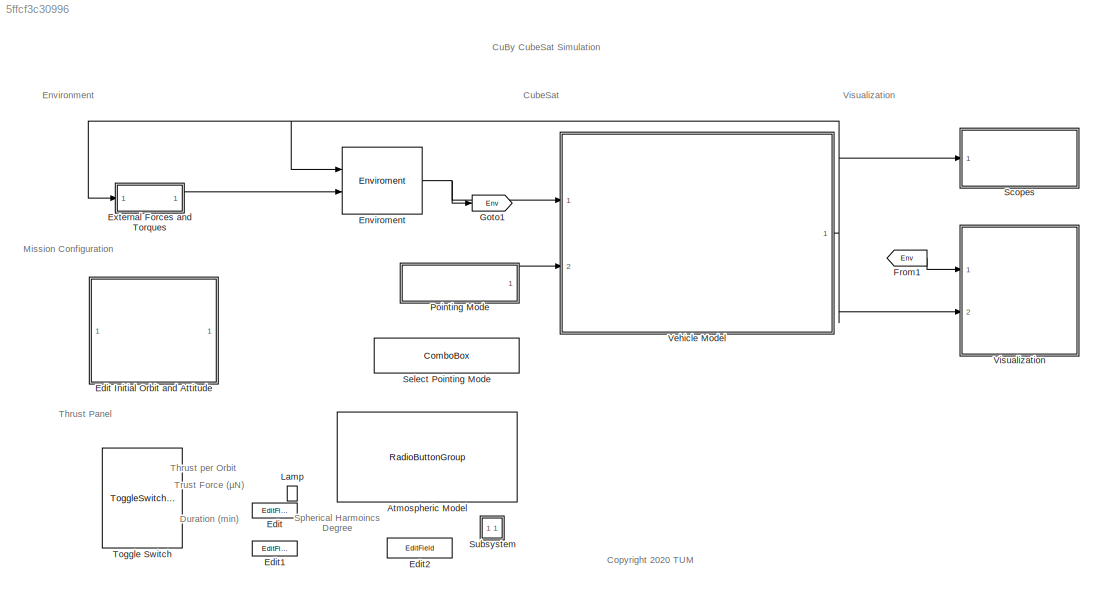
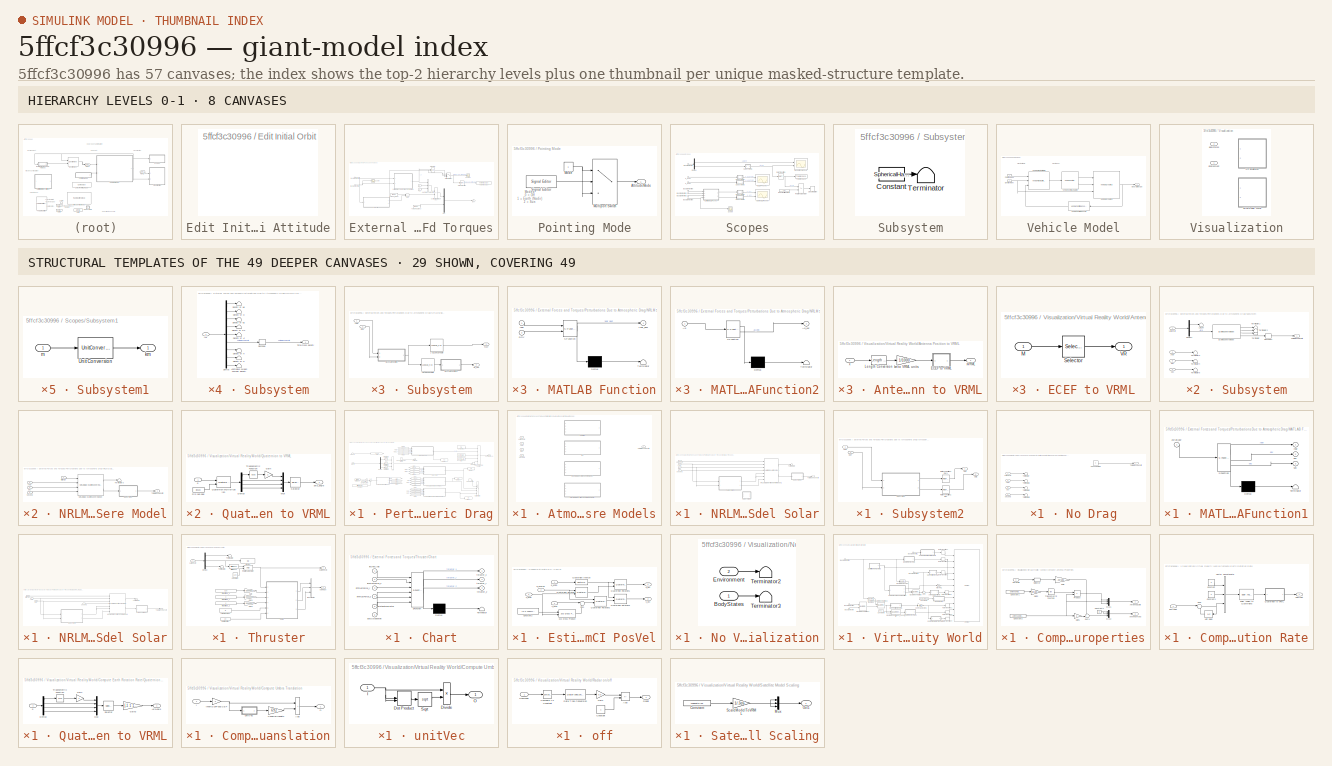
[diagram: thumbnail index - top-2 hierarchy levels (8 canvases) + 29 structural-template representatives of the remaining 49 canvases]
MODEL slx_5ffcf3c30996
KIND model
CONFIG AbsTol = auto
CONFIG EnableMultiTasking = on
CONFIG FixedStep = CubeSatTimeStep
CONFIG InitFcn = if evalin('base', 'exist(''variantVisualization'',''var'')') && ...\n        evalin('base', 'variantVisualization == 1') \n    if ~builtin('license','checkout','Virtual_Reality_Toolbox')\n        error(message('aeroblks_cubesat:cubesat:licenseFailAnim'));\n    end\nend\n\nif ~evalin('base','exist(''CubeSatTimeStep'')')\n    assignin('base','CubeSatTimeStep',1);\nend
CONFIG MaxStep = auto
CONFIG MinStep = auto
CONFIG PostLoadFcn = ATM_Model=3 % 
CONFIG PreLoadFcn = if ~builtin('license','test','Virtual_Reality_Toolbox')\n    assignin('base','variantVisualization',0)\nend
CONFIG RelTol = 1e-3
CONFIG SampleTimeConstraint = Unconstrained
CONFIG Solver = ode3
CONFIG SolverName = ode3
CONFIG StartTime = 0.0
CONFIG StopFcn = %save('./work/simulation/alt_km_simulation.mat','alt_km_simulation','-v7.3')\n\nif evalin('base', 'exist(''alt_km_simulation'', ''var'')')\n    save( ['./work/simulation/alt_km_simulation','_a_',get_param('asbCubeSat/Edit Initial Orbit and Attitude', 'a'), '_Area_', sprintf('%.4f',vehicle.Area),'.mat'],'alt_km_simulation','-v7.3')\nend
CONFIG StopTime = 86400*10
BLOCK [RadioButtonGroup] Atmospheric Model
  ButtonGroupName = Atmospheric Model
  LabelPosition = Hide
  SelectedLabel = NRLMSISE-00
BLOCK [EditField] Edit
  Alignment = Center
  LabelPosition = Hide
  ShowInitialText = on
BLOCK [SubSystem] Edit Initial Orbit and Attitude
  Ports = []
  RequestExecContextInheritance = off
BLOCK [EditField] Edit1
  Alignment = Center
  LabelPosition = Hide
  ShowInitialText = on
BLOCK [EditField] Edit2
  Alignment = Center
  LabelPosition = Hide
  ShowInitialText = on
BLOCK [Reference] Enviroment  REF=asbCubeSatEnvironmentLib/Enviroment
  Ports = [2, 1]
  SourceBlock = asbCubeSatEnvironmentLib/Enviroment
  SourceType = SubSystem
BLOCK [SubSystem] External Forces and Torques
  Ports = [1, 1]
  RequestExecContextInheritance = off
BLOCK [Sum] External Forces and Torques/Add
  IconShape = rectangular
  Ports = [2, 1]
BLOCK [Inport] External Forces and Torques/Bus Element In
BLOCK [Inport] External Forces and Torques/Bus Element In6
BLOCK [Outport] External Forces and Torques/Ext
  VectorParamsAs1DForOutWhenUnconnected = off
BLOCK [Constant] External Forces and Torques/F_y
  Value = 0
BLOCK [Constant] External Forces and Torques/F_z
  Value = 0
BLOCK [Constant] External Forces and Torques/Forces_Body
  Value = [0 0 0]
BLOCK [Integrator] External Forces and Torques/Integrator
  ExternalReset = falling
  Ports = [2, 1]
BLOCK [MultiPortSwitch] External Forces and Torques/Multiport Switch
  DataPortOrder = Zero-based contiguous
  InputSameDT = off
  Inputs = 2
  Ports = [3, 1]
  SaturateOnIntegerOverflow = off
  zeroidx = on
BLOCK [Mux] External Forces and Torques/Mux
  DisplayOption = bar
  Inputs = 2
  Ports = [2, 1]
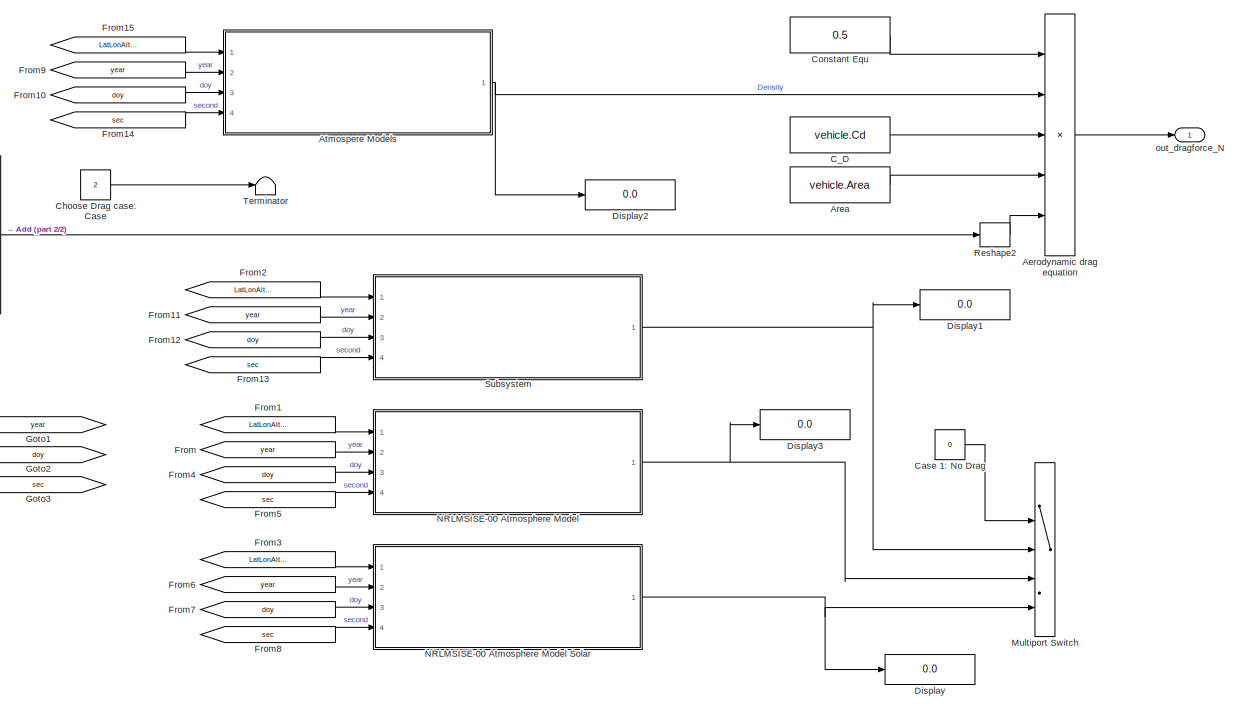
[diagram: External Forces and Torques/Perturbations Due to Atmospheric Drag - part 1/2, center side, full height]
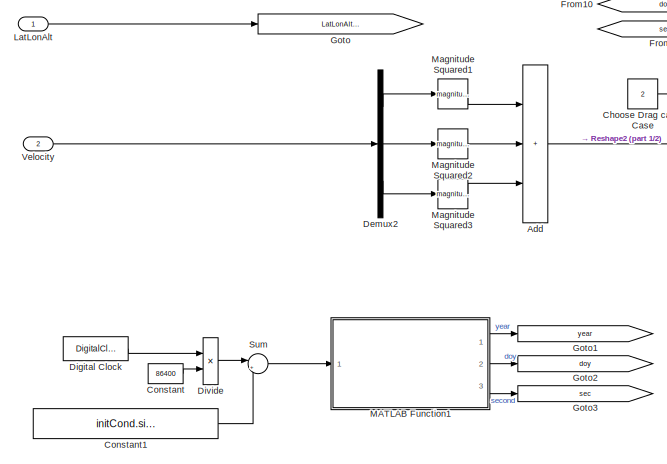
[diagram: External Forces and Torques/Perturbations Due to Atmospheric Drag - part 2/2, middle left region]
BLOCK [SubSystem] External Forces and Torques/Perturbations Due to Atmospheric Drag
  Ports = [2, 1]
  RequestExecContextInheritance = off
BLOCK [Sum] External Forces and Torques/Perturbations Due to Atmospheric Drag/Add
  IconShape = rectangular
  Inputs = 3
  Ports = [3, 1]
BLOCK [Product] External Forces and Torques/Perturbations Due to Atmospheric Drag/Aerodynamic drag equation
  Inputs = *****
  Ports = [5, 1]
BLOCK [Constant] External Forces and Torques/Perturbations Due to Atmospheric Drag/Area
  Value = vehicle.Area
BLOCK [SubSystem] External Forces and Torques/Perturbations Due to Atmospheric Drag/Atmospere Models
  LabelModeActiveChoice = 2
  Ports = [4, 1]
  PropagateVariantConditions = on
  RequestExecContextInheritance = off
  StartFcn = set_param(gcb,'OverrideUsingVariant',get_param('asbCubeSat/External Forces and Torques/Perturbations Due to Atmospheric Drag/Choose Drag case: Case','Value'));
  Variant = on
  VariantControl = Choice
  VariantControlMode = Label
BLOCK [SubSystem] External Forces and Torques/Perturbations Due to Atmospheric Drag/Atmospere Models/ISA
  Ports = [4, 1]
  RequestExecContextInheritance = off
  VariantControl = 1
BLOCK [Demux] External Forces and Torques/Perturbations Due to Atmospheric Drag/Atmospere Models/ISA/Demux1
  Outputs = [2 1]
  Ports = [1, 2]
BLOCK [Reference] External Forces and Torques/Perturbations Due to Atmospheric Drag/Atmospere Models/ISA/ISA Atmosphere Model  REF=aerolibatmos2/ISA Atmosphere Model
  Ports = [1, 4]
  SourceBlock = aerolibatmos2/ISA Atmosphere Model
  SourceProductBaseCode = AE
  SourceType = International Standard Atmosphere Model
BLOCK [Terminator] External Forces and Torques/Perturbations Due to Atmospheric Drag/Atmospere Models/ISA/LatLon
BLOCK [Inport] External Forces and Torques/Perturbations Due to Atmospheric Drag/Atmospere Models/ISA/LatLonAlt
BLOCK [Reshape] External Forces and Torques/Perturbations Due to Atmospheric Drag/Atmospere Models/ISA/Reshape1
  Ports = [1, 1]
BLOCK [Terminator] External Forces and Torques/Perturbations Due to Atmospheric Drag/Atmospere Models/ISA/Terminator
BLOCK [Terminator] External Forces and Torques/Perturbations Due to Atmospheric Drag/Atmospere Models/ISA/Terminator1
BLOCK [Terminator] External Forces and Torques/Perturbations Due to Atmospheric Drag/Atmospere Models/ISA/Terminator2
BLOCK [Terminator] External Forces and Torques/Perturbations Due to Atmospheric Drag/Atmospere Models/ISA/Terminator3
BLOCK [Terminator] External Forces and Torques/Perturbations Due to Atmospheric Drag/Atmospere Models/ISA/Terminator4
BLOCK [Terminator] External Forces and Torques/Perturbations Due to Atmospheric Drag/Atmospere Models/ISA/Terminator5
BLOCK [Outport] External Forces and Torques/Perturbations Due to Atmospheric Drag/Atmospere Models/ISA/Total mass density
BLOCK [Inport] External Forces and Torques/Perturbations Due to Atmospheric Drag/Atmospere Models/ISA/doy
  Port = 3
BLOCK [Inport] External Forces and Torques/Perturbations Due to Atmospheric Drag/Atmospere Models/ISA/second
  Port = 4
BLOCK [Inport] External Forces and Torques/Perturbations Due to Atmospheric Drag/Atmospere Models/ISA/year
  Port = 2
BLOCK [Inport] External Forces and Torques/Perturbations Due to Atmospheric Drag/Atmospere Models/LatLonAlt
BLOCK [SubSystem] External Forces and Torques/Perturbations Due to Atmospheric Drag/Atmospere Models/NRLMSISE-00 Atmosphere Model
  Ports = [4, 1]
  RequestExecContextInheritance = off
  VariantControl = 2
BLOCK [SubSystem] External Forces and Torques/Perturbations Due to Atmospheric Drag/Atmospere Models/NRLMSISE-00 Atmosphere Model Solar
  Ports = [4, 1]
  RequestExecContextInheritance = off
  VariantControl = 3
BLOCK [Inport] External Forces and Torques/Perturbations Due to Atmospheric Drag/Atmospere Models/NRLMSISE-00 Atmosphere Model Solar/LatLonAlt
BLOCK [Reference] External Forces and Torques/Perturbations Due to Atmospheric Drag/Atmospere Models/NRLMSISE-00 Atmosphere Model Solar/NRLMSISE-00 Atmosphere Model1  REF=aerolibatmos2/NRLMSISE-00
Atmosphere Model
  Ports = [7, 2]
  SourceBlock = aerolibatmos2/NRLMSISE-00\nAtmosphere Model
  SourceProductBaseCode = AE
  SourceType = NRLMSISE-00 Model
BLOCK [SubSystem] External Forces and Torques/Perturbations Due to Atmospheric Drag/Atmospere Models/NRLMSISE-00 Atmosphere Model Solar/Subsystem
  Ports = [2, 2]
  RequestExecContextInheritance = off
  SystemSampleTime = 60*60*1
  TreatAsAtomicUnit = on
BLOCK [Lookup_n-D] External Forces and Torques/Perturbations Due to Atmospheric Drag/Atmospere Models/NRLMSISE-00 Atmosphere Model Solar/Subsystem/1-D Lookup Table
  BreakpointsForDimension1 = Solar_Activity(:,1)
  InternalRulePriority = Speed
  NumberOfTableDimensions = 1
  Ports = [1, 1]
  RndMeth = Simplest
  Table = Solar_Activity(:,2)
BLOCK [Lookup_n-D] External Forces and Torques/Perturbations Due to Atmospheric Drag/Atmospere Models/NRLMSISE-00 Atmosphere Model Solar/Subsystem/Ap Lookup Table
  BreakpointsForDimension1 = Solar_Activity(:,1)
  InternalRulePriority = Speed
  NumberOfTableDimensions = 1
  Ports = [1, 1]
  RndMeth = Simplest
  Table = Solar_Activity(:,3)
BLOCK [Outport] External Forces and Torques/Perturbations Due to Atmospheric Drag/Atmospere Models/NRLMSISE-00 Atmosphere Model Solar/Subsystem/Ap_vec
  Port = 2
BLOCK [Inport] External Forces and Torques/Perturbations Due to Atmospheric Drag/Atmospere Models/NRLMSISE-00 Atmosphere Model Solar/Subsystem/DOY
  Port = 2
BLOCK [Outport] External Forces and Torques/Perturbations Due to Atmospheric Drag/Atmospere Models/NRLMSISE-00 Atmosphere Model Solar/Subsystem/F10.7
BLOCK [SubSystem] External Forces and Torques/Perturbations Due to Atmospheric Drag/Atmospere Models/NRLMSISE-00 Atmosphere Model Solar/Subsystem/MATLAB Function
  ErrorFcn = Stateflow.Translate.translate
  PermitHierarchicalResolution = ExplicitOnly
  Ports = [2, 1]
  RequestExecContextInheritance = off
  SFBlockType = MATLAB Function
  TreatAsAtomicUnit = on
BLOCK [Demux] External Forces and Torques/Perturbations Due to Atmospheric Drag/Atmospere Models/NRLMSISE-00 Atmosphere Model Solar/Subsystem/MATLAB Function/ Demux 
  Outputs = 1
  Ports = [1, 1]
BLOCK [S-Function] External Forces and Torques/Perturbations Due to Atmospheric Drag/Atmospere Models/NRLMSISE-00 Atmosphere Model Solar/Subsystem/MATLAB Function/ SFunction 
  EnableBusSupport = on
  FunctionName = sf_sfun
  PortCounts = [2 2]
  Ports = [2, 2]
  SFcnIsStateOwnerBlock = off
  SFunctionDeploymentMode = off
  Tag = Stateflow S-Function 2
BLOCK [Terminator] External Forces and Torques/Perturbations Due to Atmospheric Drag/Atmospere Models/NRLMSISE-00 Atmosphere Model Solar/Subsystem/MATLAB Function/ Terminator 
BLOCK [Inport] External Forces and Torques/Perturbations Due to Atmospheric Drag/Atmospere Models/NRLMSISE-00 Atmosphere Model Solar/Subsystem/MATLAB Function/DOY
  Port = 2
BLOCK [Outport] External Forces and Torques/Perturbations Due to Atmospheric Drag/Atmospere Models/NRLMSISE-00 Atmosphere Model Solar/Subsystem/MATLAB Function/Year_deci
BLOCK [Inport] External Forces and Torques/Perturbations Due to Atmospheric Drag/Atmospere Models/NRLMSISE-00 Atmosphere Model Solar/Subsystem/MATLAB Function/year
BLOCK [SubSystem] External Forces and Torques/Perturbations Due to Atmospheric Drag/Atmospere Models/NRLMSISE-00 Atmosphere Model Solar/Subsystem/MATLAB Function2
  ErrorFcn = Stateflow.Translate.translate
  PermitHierarchicalResolution = ExplicitOnly
  Ports = [1, 1]
  RequestExecContextInheritance = off
  SFBlockType = MATLAB Function
  TreatAsAtomicUnit = on
BLOCK [Demux] External Forces and Torques/Perturbations Due to Atmospheric Drag/Atmospere Models/NRLMSISE-00 Atmosphere Model Solar/Subsystem/MATLAB Function2/ Demux 
  Outputs = 1
  Ports = [1, 1]
BLOCK [S-Function] External Forces and Torques/Perturbations Due to Atmospheric Drag/Atmospere Models/NRLMSISE-00 Atmosphere Model Solar/Subsystem/MATLAB Function2/ SFunction 
  EnableBusSupport = on
  FunctionName = sf_sfun
  PortCounts = [1 2]
  Ports = [1, 2]
  SFcnIsStateOwnerBlock = off
  SFunctionDeploymentMode = off
  Tag = Stateflow S-Function 4
BLOCK [Terminator] External Forces and Torques/Perturbations Due to Atmospheric Drag/Atmospere Models/NRLMSISE-00 Atmosphere Model Solar/Subsystem/MATLAB Function2/ Terminator 
BLOCK [Inport] External Forces and Torques/Perturbations Due to Atmospheric Drag/Atmospere Models/NRLMSISE-00 Atmosphere Model Solar/Subsystem/MATLAB Function2/Ap
BLOCK [Outport] External Forces and Torques/Perturbations Due to Atmospheric Drag/Atmospere Models/NRLMSISE-00 Atmosphere Model Solar/Subsystem/MATLAB Function2/Ap_vec
BLOCK [Inport] External Forces and Torques/Perturbations Due to Atmospheric Drag/Atmospere Models/NRLMSISE-00 Atmosphere Model Solar/Subsystem/year
BLOCK [SubSystem] External Forces and Torques/Perturbations Due to Atmospheric Drag/Atmospere Models/NRLMSISE-00 Atmosphere Model Solar/Subsystem1
  Ports = [1, 1]
  RequestExecContextInheritance = off
BLOCK [Terminator] External Forces and Torques/Perturbations Due to Atmospheric Drag/Atmospere Models/NRLMSISE-00 Atmosphere Model Solar/Subsystem1/Anomalous oxygen number density
BLOCK [Demux] External Forces and Torques/Perturbations Due to Atmospheric Drag/Atmospere Models/NRLMSISE-00 Atmosphere Model Solar/Subsystem1/Demux
  Outputs = 9
  Ports = [1, 9]
BLOCK [Terminator] External Forces and Torques/Perturbations Due to Atmospheric Drag/Atmospere Models/NRLMSISE-00 Atmosphere Model Solar/Subsystem1/Density of Ar
BLOCK [Terminator] External Forces and Torques/Perturbations Due to Atmospheric Drag/Atmospere Models/NRLMSISE-00 Atmosphere Model Solar/Subsystem1/Density of H
BLOCK [Terminator] External Forces and Torques/Perturbations Due to Atmospheric Drag/Atmospere Models/NRLMSISE-00 Atmosphere Model Solar/Subsystem1/Density of He
BLOCK [Terminator] External Forces and Torques/Perturbations Due to Atmospheric Drag/Atmospere Models/NRLMSISE-00 Atmosphere Model Solar/Subsystem1/Density of N
BLOCK [Terminator] External Forces and Torques/Perturbations Due to Atmospheric Drag/Atmospere Models/NRLMSISE-00 Atmosphere Model Solar/Subsystem1/Density of N2
BLOCK [Terminator] External Forces and Torques/Perturbations Due to Atmospheric Drag/Atmospere Models/NRLMSISE-00 Atmosphere Model Solar/Subsystem1/Density of O
BLOCK [Terminator] External Forces and Torques/Perturbations Due to Atmospheric Drag/Atmospere Models/NRLMSISE-00 Atmosphere Model Solar/Subsystem1/Density of O2
BLOCK [Inport] External Forces and Torques/Perturbations Due to Atmospheric Drag/Atmospere Models/NRLMSISE-00 Atmosphere Model Solar/Subsystem1/In1
BLOCK [Reshape] External Forces and Torques/Perturbations Due to Atmospheric Drag/Atmospere Models/NRLMSISE-00 Atmosphere Model Solar/Subsystem1/Reshape3
  Ports = [1, 1]
BLOCK [Outport] External Forces and Torques/Perturbations Due to Atmospheric Drag/Atmospere Models/NRLMSISE-00 Atmosphere Model Solar/Subsystem1/Total mass density
BLOCK [SubSystem] External Forces and Torques/Perturbations Due to Atmospheric Drag/Atmospere Models/NRLMSISE-00 Atmosphere Model Solar/Subsystem2
  Commented = on
  Ports = [2, 2]
  RequestExecContextInheritance = off
BLOCK [Inport] External Forces and Torques/Perturbations Due to Atmospheric Drag/Atmospere Models/NRLMSISE-00 Atmosphere Model Solar/Subsystem2/DOY
  Port = 2
BLOCK [Outport] External Forces and Torques/Perturbations Due to Atmospheric Drag/Atmospere Models/NRLMSISE-00 Atmosphere Model Solar/Subsystem2/Out1
BLOCK [Outport] External Forces and Torques/Perturbations Due to Atmospheric Drag/Atmospere Models/NRLMSISE-00 Atmosphere Model Solar/Subsystem2/Out2
  Port = 2
BLOCK [RateTransition] External Forces and Torques/Perturbations Due to Atmospheric Drag/Atmospere Models/NRLMSISE-00 Atmosphere Model Solar/Subsystem2/Rate Transition 1 Day
BLOCK [RateTransition] External Forces and Torques/Perturbations Due to Atmospheric Drag/Atmospere Models/NRLMSISE-00 Atmosphere Model Solar/Subsystem2/Rate Transition 1 Day1
BLOCK [SubSystem] External Forces and Torques/Perturbations Due to Atmospheric Drag/Atmospere Models/NRLMSISE-00 Atmosphere Model Solar/Subsystem2/Subsystem
  Ports = [2, 2]
  RequestExecContextInheritance = off
  SystemSampleTime = 86400*1
  TreatAsAtomicUnit = on
BLOCK [Lookup_n-D] External Forces and Torques/Perturbations Due to Atmospheric Drag/Atmospere Models/NRLMSISE-00 Atmosphere Model Solar/Subsystem2/Subsystem/1-D Lookup Table
  BreakpointsForDimension1 = Solar_Activity(:,1)
  InternalRulePriority = Speed
  NumberOfTableDimensions = 1
  Ports = [1, 1]
  RndMeth = Simplest
  Table = Solar_Activity(:,2)
BLOCK [Lookup_n-D] External Forces and Torques/Perturbations Due to Atmospheric Drag/Atmospere Models/NRLMSISE-00 Atmosphere Model Solar/Subsystem2/Subsystem/Ap Lookup Table
  BreakpointsForDimension1 = Solar_Activity(:,1)
  InternalRulePriority = Speed
  NumberOfTableDimensions = 1
  Ports = [1, 1]
  RndMeth = Simplest
  Table = Solar_Activity(:,3)
BLOCK [Outport] External Forces and Torques/Perturbations Due to Atmospheric Drag/Atmospere Models/NRLMSISE-00 Atmosphere Model Solar/Subsystem2/Subsystem/Ap_vec
  Port = 2
BLOCK [Inport] External Forces and Torques/Perturbations Due to Atmospheric Drag/Atmospere Models/NRLMSISE-00 Atmosphere Model Solar/Subsystem2/Subsystem/DOY
  Port = 2
BLOCK [SubSystem] External Forces and Torques/Perturbations Due to Atmospheric Drag/Atmospere Models/NRLMSISE-00 Atmosphere Model Solar/Subsystem2/Subsystem/MATLAB Function
  ErrorFcn = Stateflow.Translate.translate
  PermitHierarchicalResolution = ExplicitOnly
  Ports = [2, 1]
  RequestExecContextInheritance = off
  SFBlockType = MATLAB Function
  TreatAsAtomicUnit = on
BLOCK [Demux] External Forces and Torques/Perturbations Due to Atmospheric Drag/Atmospere Models/NRLMSISE-00 Atmosphere Model Solar/Subsystem2/Subsystem/MATLAB Function/ Demux 
  Outputs = 1
  Ports = [1, 1]
BLOCK [S-Function] External Forces and Torques/Perturbations Due to Atmospheric Drag/Atmospere Models/NRLMSISE-00 Atmosphere Model Solar/Subsystem2/Subsystem/MATLAB Function/ SFunction 
  EnableBusSupport = on
  FunctionName = sf_sfun
  PortCounts = [2 2]
  Ports = [2, 2]
  SFcnIsStateOwnerBlock = off
  SFunctionDeploymentMode = off
  Tag = Stateflow S-Function 5
BLOCK [Terminator] External Forces and Torques/Perturbations Due to Atmospheric Drag/Atmospere Models/NRLMSISE-00 Atmosphere Model Solar/Subsystem2/Subsystem/MATLAB Function/ Terminator 
BLOCK [Inport] External Forces and Torques/Perturbations Due to Atmospheric Drag/Atmospere Models/NRLMSISE-00 Atmosphere Model Solar/Subsystem2/Subsystem/MATLAB Function/DOY
  Port = 2
BLOCK [Outport] External Forces and Torques/Perturbations Due to Atmospheric Drag/Atmospere Models/NRLMSISE-00 Atmosphere Model Solar/Subsystem2/Subsystem/MATLAB Function/Year_deci
BLOCK [Inport] External Forces and Torques/Perturbations Due to Atmospheric Drag/Atmospere Models/NRLMSISE-00 Atmosphere Model Solar/Subsystem2/Subsystem/MATLAB Function/year
BLOCK [SubSystem] External Forces and Torques/Perturbations Due to Atmospheric Drag/Atmospere Models/NRLMSISE-00 Atmosphere Model Solar/Subsystem2/Subsystem/MATLAB Function2
  ErrorFcn = Stateflow.Translate.translate
  PermitHierarchicalResolution = ExplicitOnly
  Ports = [1, 1]
  RequestExecContextInheritance = off
  SFBlockType = MATLAB Function
  TreatAsAtomicUnit = on
BLOCK [Demux] External Forces and Torques/Perturbations Due to Atmospheric Drag/Atmospere Models/NRLMSISE-00 Atmosphere Model Solar/Subsystem2/Subsystem/MATLAB Function2/ Demux 
  Outputs = 1
  Ports = [1, 1]
BLOCK [S-Function] External Forces and Torques/Perturbations Due to Atmospheric Drag/Atmospere Models/NRLMSISE-00 Atmosphere Model Solar/Subsystem2/Subsystem/MATLAB Function2/ SFunction 
  EnableBusSupport = on
  FunctionName = sf_sfun
  PortCounts = [1 2]
  Ports = [1, 2]
  SFcnIsStateOwnerBlock = off
  SFunctionDeploymentMode = off
  Tag = Stateflow S-Function 6
BLOCK [Terminator] External Forces and Torques/Perturbations Due to Atmospheric Drag/Atmospere Models/NRLMSISE-00 Atmosphere Model Solar/Subsystem2/Subsystem/MATLAB Function2/ Terminator 
BLOCK [Inport] External Forces and Torques/Perturbations Due to Atmospheric Drag/Atmospere Models/NRLMSISE-00 Atmosphere Model Solar/Subsystem2/Subsystem/MATLAB Function2/Ap
BLOCK [Outport] External Forces and Torques/Perturbations Due to Atmospheric Drag/Atmospere Models/NRLMSISE-00 Atmosphere Model Solar/Subsystem2/Subsystem/MATLAB Function2/Ap_vec
BLOCK [Outport] External Forces and Torques/Perturbations Due to Atmospheric Drag/Atmospere Models/NRLMSISE-00 Atmosphere Model Solar/Subsystem2/Subsystem/Out1
BLOCK [Inport] External Forces and Torques/Perturbations Due to Atmospheric Drag/Atmospere Models/NRLMSISE-00 Atmosphere Model Solar/Subsystem2/Subsystem/year
BLOCK [Inport] External Forces and Torques/Perturbations Due to Atmospheric Drag/Atmospere Models/NRLMSISE-00 Atmosphere Model Solar/Subsystem2/year
BLOCK [Terminator] External Forces and Torques/Perturbations Due to Atmospheric Drag/Atmospere Models/NRLMSISE-00 Atmosphere Model Solar/Terminator4
BLOCK [Outport] External Forces and Torques/Perturbations Due to Atmospheric Drag/Atmospere Models/NRLMSISE-00 Atmosphere Model Solar/Total mass density
BLOCK [Inport] External Forces and Torques/Perturbations Due to Atmospheric Drag/Atmospere Models/NRLMSISE-00 Atmosphere Model Solar/doy
  Port = 3
BLOCK [Inport] External Forces and Torques/Perturbations Due to Atmospheric Drag/Atmospere Models/NRLMSISE-00 Atmosphere Model Solar/second
  Port = 4
BLOCK [Inport] External Forces and Torques/Perturbations Due to Atmospheric Drag/Atmospere Models/NRLMSISE-00 Atmosphere Model Solar/year
  Port = 2
BLOCK [Inport] External Forces and Torques/Perturbations Due to Atmospheric Drag/Atmospere Models/NRLMSISE-00 Atmosphere Model/LatLonAlt
BLOCK [Reference] External Forces and Torques/Perturbations Due to Atmospheric Drag/Atmospere Models/NRLMSISE-00 Atmosphere Model/NRLMSISE-00 Atmosphere Model  REF=aerolibatmos2/NRLMSISE-00
Atmosphere Model
  Ports = [4, 2]
  SourceBlock = aerolibatmos2/NRLMSISE-00\nAtmosphere Model
  SourceProductBaseCode = AE
  SourceType = NRLMSISE-00 Model
BLOCK [SubSystem] External Forces and Torques/Perturbations Due to Atmospheric Drag/Atmospere Models/NRLMSISE-00 Atmosphere Model/Subsystem
  Ports = [1, 1]
  RequestExecContextInheritance = off
BLOCK [Terminator] External Forces and Torques/Perturbations Due to Atmospheric Drag/Atmospere Models/NRLMSISE-00 Atmosphere Model/Subsystem/Anomalous oxygen number density
BLOCK [Demux] External Forces and Torques/Perturbations Due to Atmospheric Drag/Atmospere Models/NRLMSISE-00 Atmosphere Model/Subsystem/Demux
  Outputs = 9
  Ports = [1, 9]
BLOCK [Terminator] External Forces and Torques/Perturbations Due to Atmospheric Drag/Atmospere Models/NRLMSISE-00 Atmosphere Model/Subsystem/Density of Ar
BLOCK [Terminator] External Forces and Torques/Perturbations Due to Atmospheric Drag/Atmospere Models/NRLMSISE-00 Atmosphere Model/Subsystem/Density of H
BLOCK [Terminator] External Forces and Torques/Perturbations Due to Atmospheric Drag/Atmospere Models/NRLMSISE-00 Atmosphere Model/Subsystem/Density of He
BLOCK [Terminator] External Forces and Torques/Perturbations Due to Atmospheric Drag/Atmospere Models/NRLMSISE-00 Atmosphere Model/Subsystem/Density of N
BLOCK [Terminator] External Forces and Torques/Perturbations Due to Atmospheric Drag/Atmospere Models/NRLMSISE-00 Atmosphere Model/Subsystem/Density of N2
BLOCK [Terminator] External Forces and Torques/Perturbations Due to Atmospheric Drag/Atmospere Models/NRLMSISE-00 Atmosphere Model/Subsystem/Density of O
BLOCK [Terminator] External Forces and Torques/Perturbations Due to Atmospheric Drag/Atmospere Models/NRLMSISE-00 Atmosphere Model/Subsystem/Density of O2
BLOCK [Inport] External Forces and Torques/Perturbations Due to Atmospheric Drag/Atmospere Models/NRLMSISE-00 Atmosphere Model/Subsystem/In1
BLOCK [Reshape] External Forces and Torques/Perturbations Due to Atmospheric Drag/Atmospere Models/NRLMSISE-00 Atmosphere Model/Subsystem/Reshape
  Ports = [1, 1]
BLOCK [Outport] External Forces and Torques/Perturbations Due to Atmospheric Drag/Atmospere Models/NRLMSISE-00 Atmosphere Model/Subsystem/Total mass density
BLOCK [Terminator] External Forces and Torques/Perturbations Due to Atmospheric Drag/Atmospere Models/NRLMSISE-00 Atmosphere Model/Terminator3
BLOCK [Outport] External Forces and Torques/Perturbations Due to Atmospheric Drag/Atmospere Models/NRLMSISE-00 Atmosphere Model/Total mass density
BLOCK [Inport] External Forces and Torques/Perturbations Due to Atmospheric Drag/Atmospere Models/NRLMSISE-00 Atmosphere Model/doy
  Port = 3
BLOCK [Inport] External Forces and Torques/Perturbations Due to Atmospheric Drag/Atmospere Models/NRLMSISE-00 Atmosphere Model/second
  Port = 4
BLOCK [Inport] External Forces and Torques/Perturbations Due to Atmospheric Drag/Atmospere Models/NRLMSISE-00 Atmosphere Model/year
  Port = 2
BLOCK [SubSystem] External Forces and Torques/Perturbations Due to Atmospheric Drag/Atmospere Models/No Drag
  Ports = [4, 1]
  RequestExecContextInheritance = off
  VariantControl = 0
BLOCK [Constant] External Forces and Torques/Perturbations Due to Atmospheric Drag/Atmospere Models/No Drag/Case 1: No Drag
  Value = 0
BLOCK [Inport] External Forces and Torques/Perturbations Due to Atmospheric Drag/Atmospere Models/No Drag/LatLonAlt
BLOCK [Terminator] External Forces and Torques/Perturbations Due to Atmospheric Drag/Atmospere Models/No Drag/Terminator
BLOCK [Terminator] External Forces and Torques/Perturbations Due to Atmospheric Drag/Atmospere Models/No Drag/Terminator1
BLOCK [Terminator] External Forces and Torques/Perturbations Due to Atmospheric Drag/Atmospere Models/No Drag/Terminator2
BLOCK [Terminator] External Forces and Torques/Perturbations Due to Atmospheric Drag/Atmospere Models/No Drag/Terminator3
BLOCK [Outport] External Forces and Torques/Perturbations Due to Atmospheric Drag/Atmospere Models/No Drag/Total mass density
BLOCK [Inport] External Forces and Torques/Perturbations Due to Atmospheric Drag/Atmospere Models/No Drag/doy
  Port = 3
BLOCK [Inport] External Forces and Torques/Perturbations Due to Atmospheric Drag/Atmospere Models/No Drag/second
  Port = 4
BLOCK [Inport] External Forces and Torques/Perturbations Due to Atmospheric Drag/Atmospere Models/No Drag/year
  Port = 2
BLOCK [Outport] External Forces and Torques/Perturbations Due to Atmospheric Drag/Atmospere Models/Total mass density
BLOCK [Inport] External Forces and Torques/Perturbations Due to Atmospheric Drag/Atmospere Models/doy
  Port = 3
BLOCK [Inport] External Forces and Torques/Perturbations Due to Atmospheric Drag/Atmospere Models/second
  Port = 4
BLOCK [Inport] External Forces and Torques/Perturbations Due to Atmospheric Drag/Atmospere Models/year
  Port = 2
BLOCK [Constant] External Forces and Torques/Perturbations Due to Atmospheric Drag/C_D
  Value = vehicle.Cd
BLOCK [Constant] External Forces and Torques/Perturbations Due to Atmospheric Drag/Case 1: No Drag
  Commented = on
  Value = 0
BLOCK [Constant] External Forces and Torques/Perturbations Due to Atmospheric Drag/Choose Drag case: Case
  Value = 2
BLOCK [Constant] External Forces and Torques/Perturbations Due to Atmospheric Drag/Constant
  Value = 86400
BLOCK [Constant] External Forces and Torques/Perturbations Due to Atmospheric Drag/Constant Equ
  Value = 0.5
BLOCK [Constant] External Forces and Torques/Perturbations Due to Atmospheric Drag/Constant1
  Value = initCond.simStartDate.JD
BLOCK [Demux] External Forces and Torques/Perturbations Due to Atmospheric Drag/Demux2
  Outputs = 3
  Ports = [1, 3]
BLOCK [DigitalClock] External Forces and Torques/Perturbations Due to Atmospheric Drag/Digital Clock
  SampleTime = CubeSatTimeStep
BLOCK [Display] External Forces and Torques/Perturbations Due to Atmospheric Drag/Display
  Commented = on
  Decimation = 1
  Ports = [1]
BLOCK [Display] External Forces and Torques/Perturbations Due to Atmospheric Drag/Display1
  Commented = on
  Decimation = 1
  Ports = [1]
BLOCK [Display] External Forces and Torques/Perturbations Due to Atmospheric Drag/Display2
  Decimation = 1
  Ports = [1]
BLOCK [Display] External Forces and Torques/Perturbations Due to Atmospheric Drag/Display3
  Commented = on
  Decimation = 1
  Ports = [1]
BLOCK [Product] External Forces and Torques/Perturbations Due to Atmospheric Drag/Divide
  Inputs = */
  Ports = [2, 1]
BLOCK [From] External Forces and Torques/Perturbations Due to Atmospheric Drag/From
  Commented = on
  GotoTag = year
BLOCK [From] External Forces and Torques/Perturbations Due to Atmospheric Drag/From1
  Commented = on
  GotoTag = LatLonAlt_goto
BLOCK [From] External Forces and Torques/Perturbations Due to Atmospheric Drag/From10
  GotoTag = doy
BLOCK [From] External Forces and Torques/Perturbations Due to Atmospheric Drag/From11
  Commented = on
  GotoTag = year
BLOCK [From] External Forces and Torques/Perturbations Due to Atmospheric Drag/From12
  Commented = on
  GotoTag = doy
BLOCK [From] External Forces and Torques/Perturbations Due to Atmospheric Drag/From13
  Commented = on
  GotoTag = sec
BLOCK [From] External Forces and Torques/Perturbations Due to Atmospheric Drag/From14
  GotoTag = sec
BLOCK [From] External Forces and Torques/Perturbations Due to Atmospheric Drag/From15
  GotoTag = LatLonAlt_goto
BLOCK [From] External Forces and Torques/Perturbations Due to Atmospheric Drag/From2
  Commented = on
  GotoTag = LatLonAlt_goto
BLOCK [From] External Forces and Torques/Perturbations Due to Atmospheric Drag/From3
  Commented = on
  GotoTag = LatLonAlt_goto
BLOCK [From] External Forces and Torques/Perturbations Due to Atmospheric Drag/From4
  Commented = on
  GotoTag = doy
BLOCK [From] External Forces and Torques/Perturbations Due to Atmospheric Drag/From5
  Commented = on
  GotoTag = sec
BLOCK [From] External Forces and Torques/Perturbations Due to Atmospheric Drag/From6
  Commented = on
  GotoTag = year
BLOCK [From] External Forces and Torques/Perturbations Due to Atmospheric Drag/From7
  Commented = on
  GotoTag = doy
BLOCK [From] External Forces and Torques/Perturbations Due to Atmospheric Drag/From8
  Commented = on
  GotoTag = sec
BLOCK [From] External Forces and Torques/Perturbations Due to Atmospheric Drag/From9
  GotoTag = year
BLOCK [Goto] External Forces and Torques/Perturbations Due to Atmospheric Drag/Goto
  GotoTag = LatLonAlt_goto
BLOCK [Goto] External Forces and Torques/Perturbations Due to Atmospheric Drag/Goto1
  GotoTag = year
BLOCK [Goto] External Forces and Torques/Perturbations Due to Atmospheric Drag/Goto2
  GotoTag = doy
BLOCK [Goto] External Forces and Torques/Perturbations Due to Atmospheric Drag/Goto3
  GotoTag = sec
BLOCK [Inport] External Forces and Torques/Perturbations Due to Atmospheric Drag/LatLonAlt
BLOCK [SubSystem] External Forces and Torques/Perturbations Due to Atmospheric Drag/MATLAB Function1
  ErrorFcn = Stateflow.Translate.translate
  PermitHierarchicalResolution = ExplicitOnly
  Ports = [1, 3]
  RequestExecContextInheritance = off
  SFBlockType = MATLAB Function
  TreatAsAtomicUnit = on
BLOCK [Demux] External Forces and Torques/Perturbations Due to Atmospheric Drag/MATLAB Function1/ Demux 
  Outputs = 1
  Ports = [1, 1]
BLOCK [S-Function] External Forces and Torques/Perturbations Due to Atmospheric Drag/MATLAB Function1/ SFunction 
  EnableBusSupport = on
  FunctionName = sf_sfun
  PortCounts = [1 4]
  Ports = [1, 4]
  SFcnIsStateOwnerBlock = off
  SFunctionDeploymentMode = off
  Tag = Stateflow S-Function 1
BLOCK [Terminator] External Forces and Torques/Perturbations Due to Atmospheric Drag/MATLAB Function1/ Terminator 
BLOCK [Inport] External Forces and Torques/Perturbations Due to Atmospheric Drag/MATLAB Function1/Julian_day
BLOCK [Outport] External Forces and Torques/Perturbations Due to Atmospheric Drag/MATLAB Function1/doy
  Port = 2
BLOCK [Outport] External Forces and Torques/Perturbations Due to Atmospheric Drag/MATLAB Function1/sec
  Port = 3
BLOCK [Outport] External Forces and Torques/Perturbations Due to Atmospheric Drag/MATLAB Function1/year
BLOCK [Math] External Forces and Torques/Perturbations Due to Atmospheric Drag/Magnitude Squared1
  Operator = magnitude^2
  Ports = [1, 1]
BLOCK [Math] External Forces and Torques/Perturbations Due to Atmospheric Drag/Magnitude Squared2
  Operator = magnitude^2
  Ports = [1, 1]
BLOCK [Math] External Forces and Torques/Perturbations Due to Atmospheric Drag/Magnitude Squared3
  Operator = magnitude^2
  Ports = [1, 1]
BLOCK [MultiPortSwitch] External Forces and Torques/Perturbations Due to Atmospheric Drag/Multiport Switch
  Commented = on
  DataPortOrder = Zero-based contiguous
  InputSameDT = off
  Inputs = 4
  Ports = [5, 1]
  SaturateOnIntegerOverflow = off
  zeroidx = on
BLOCK [SubSystem] External Forces and Torques/Perturbations Due to Atmospheric Drag/NRLMSISE-00 Atmosphere Model
  Commented = on
  Ports = [4, 1]
  RequestExecContextInheritance = off
BLOCK [SubSystem] External Forces and Torques/Perturbations Due to Atmospheric Drag/NRLMSISE-00 Atmosphere Model Solar
  Commented = on
  Ports = [4, 1]
  RequestExecContextInheritance = off
BLOCK [Reference] External Forces and Torques/Perturbations Due to Atmospheric Drag/NRLMSISE-00 Atmosphere Model Solar/NRLMSISE-00 Atmosphere Model1  REF=aerolibatmos2/NRLMSISE-00
Atmosphere Model
  Ports = [7, 2]
  SourceBlock = aerolibatmos2/NRLMSISE-00\nAtmosphere Model
  SourceProductBaseCode = AE
  SourceType = NRLMSISE-00 Model
BLOCK [SubSystem] External Forces and Torques/Perturbations Due to Atmospheric Drag/NRLMSISE-00 Atmosphere Model Solar/Subsystem
  Ports = [2, 2]
  RequestExecContextInheritance = off
  SystemSampleTime = 60*60*1
  TreatAsAtomicUnit = on
BLOCK [Lookup_n-D] External Forces and Torques/Perturbations Due to Atmospheric Drag/NRLMSISE-00 Atmosphere Model Solar/Subsystem/1-D Lookup Table
  BreakpointsForDimension1 = Solar_Activity(:,1)
  InternalRulePriority = Speed
  NumberOfTableDimensions = 1
  Ports = [1, 1]
  RndMeth = Simplest
  Table = Solar_Activity(:,2)
BLOCK [Lookup_n-D] External Forces and Torques/Perturbations Due to Atmospheric Drag/NRLMSISE-00 Atmosphere Model Solar/Subsystem/Ap Lookup Table
  BreakpointsForDimension1 = Solar_Activity(:,1)
  InternalRulePriority = Speed
  NumberOfTableDimensions = 1
  Ports = [1, 1]
  RndMeth = Simplest
  Table = Solar_Activity(:,3)
BLOCK [Outport] External Forces and Torques/Perturbations Due to Atmospheric Drag/NRLMSISE-00 Atmosphere Model Solar/Subsystem/Ap_vec
  Port = 2
BLOCK [Inport] External Forces and Torques/Perturbations Due to Atmospheric Drag/NRLMSISE-00 Atmosphere Model Solar/Subsystem/DOY
  Port = 2
BLOCK [Outport] External Forces and Torques/Perturbations Due to Atmospheric Drag/NRLMSISE-00 Atmosphere Model Solar/Subsystem/F10.7
BLOCK [SubSystem] External Forces and Torques/Perturbations Due to Atmospheric Drag/NRLMSISE-00 Atmosphere Model Solar/Subsystem/MATLAB Function
  ErrorFcn = Stateflow.Translate.translate
  PermitHierarchicalResolution = ExplicitOnly
  Ports = [2, 1]
  RequestExecContextInheritance = off
  SFBlockType = MATLAB Function
  TreatAsAtomicUnit = on
BLOCK [Demux] External Forces and Torques/Perturbations Due to Atmospheric Drag/NRLMSISE-00 Atmosphere Model Solar/Subsystem/MATLAB Function/ Demux 
  Outputs = 1
  Ports = [1, 1]
BLOCK [S-Function] External Forces and Torques/Perturbations Due to Atmospheric Drag/NRLMSISE-00 Atmosphere Model Solar/Subsystem/MATLAB Function/ SFunction 
  EnableBusSupport = on
  FunctionName = sf_sfun
  PortCounts = [2 2]
  Ports = [2, 2]
  SFcnIsStateOwnerBlock = off
  SFunctionDeploymentMode = off
  Tag = Stateflow S-Function 7
BLOCK [Terminator] External Forces and Torques/Perturbations Due to Atmospheric Drag/NRLMSISE-00 Atmosphere Model Solar/Subsystem/MATLAB Function/ Terminator 
BLOCK [Inport] External Forces and Torques/Perturbations Due to Atmospheric Drag/NRLMSISE-00 Atmosphere Model Solar/Subsystem/MATLAB Function/DOY
  Port = 2
BLOCK [Outport] External Forces and Torques/Perturbations Due to Atmospheric Drag/NRLMSISE-00 Atmosphere Model Solar/Subsystem/MATLAB Function/Year_deci
BLOCK [Inport] External Forces and Torques/Perturbations Due to Atmospheric Drag/NRLMSISE-00 Atmosphere Model Solar/Subsystem/MATLAB Function/year
BLOCK [SubSystem] External Forces and Torques/Perturbations Due to Atmospheric Drag/NRLMSISE-00 Atmosphere Model Solar/Subsystem/MATLAB Function2
  ErrorFcn = Stateflow.Translate.translate
  PermitHierarchicalResolution = ExplicitOnly
  Ports = [1, 1]
  RequestExecContextInheritance = off
  SFBlockType = MATLAB Function
  TreatAsAtomicUnit = on
BLOCK [Demux] External Forces and Torques/Perturbations Due to Atmospheric Drag/NRLMSISE-00 Atmosphere Model Solar/Subsystem/MATLAB Function2/ Demux 
  Outputs = 1
  Ports = [1, 1]
BLOCK [S-Function] External Forces and Torques/Perturbations Due to Atmospheric Drag/NRLMSISE-00 Atmosphere Model Solar/Subsystem/MATLAB Function2/ SFunction 
  EnableBusSupport = on
  FunctionName = sf_sfun
  PortCounts = [1 2]
  Ports = [1, 2]
  SFcnIsStateOwnerBlock = off
  SFunctionDeploymentMode = off
  Tag = Stateflow S-Function 8
BLOCK [Terminator] External Forces and Torques/Perturbations Due to Atmospheric Drag/NRLMSISE-00 Atmosphere Model Solar/Subsystem/MATLAB Function2/ Terminator 
BLOCK [Inport] External Forces and Torques/Perturbations Due to Atmospheric Drag/NRLMSISE-00 Atmosphere Model Solar/Subsystem/MATLAB Function2/Ap
BLOCK [Outport] External Forces and Torques/Perturbations Due to Atmospheric Drag/NRLMSISE-00 Atmosphere Model Solar/Subsystem/MATLAB Function2/Ap_vec
BLOCK [Inport] External Forces and Torques/Perturbations Due to Atmospheric Drag/NRLMSISE-00 Atmosphere Model Solar/Subsystem/year
BLOCK [SubSystem] External Forces and Torques/Perturbations Due to Atmospheric Drag/NRLMSISE-00 Atmosphere Model Solar/Subsystem1
  Ports = [1, 1]
  RequestExecContextInheritance = off
BLOCK [Terminator] External Forces and Torques/Perturbations Due to Atmospheric Drag/NRLMSISE-00 Atmosphere Model Solar/Subsystem1/Anomalous oxygen number density
BLOCK [Demux] External Forces and Torques/Perturbations Due to Atmospheric Drag/NRLMSISE-00 Atmosphere Model Solar/Subsystem1/Demux
  Outputs = 9
  Ports = [1, 9]
BLOCK [Terminator] External Forces and Torques/Perturbations Due to Atmospheric Drag/NRLMSISE-00 Atmosphere Model Solar/Subsystem1/Density of Ar
BLOCK [Terminator] External Forces and Torques/Perturbations Due to Atmospheric Drag/NRLMSISE-00 Atmosphere Model Solar/Subsystem1/Density of H
BLOCK [Terminator] External Forces and Torques/Perturbations Due to Atmospheric Drag/NRLMSISE-00 Atmosphere Model Solar/Subsystem1/Density of He
BLOCK [Terminator] External Forces and Torques/Perturbations Due to Atmospheric Drag/NRLMSISE-00 Atmosphere Model Solar/Subsystem1/Density of N
BLOCK [Terminator] External Forces and Torques/Perturbations Due to Atmospheric Drag/NRLMSISE-00 Atmosphere Model Solar/Subsystem1/Density of N2
BLOCK [Terminator] External Forces and Torques/Perturbations Due to Atmospheric Drag/NRLMSISE-00 Atmosphere Model Solar/Subsystem1/Density of O
BLOCK [Terminator] External Forces and Torques/Perturbations Due to Atmospheric Drag/NRLMSISE-00 Atmosphere Model Solar/Subsystem1/Density of O2
BLOCK [Inport] External Forces and Torques/Perturbations Due to Atmospheric Drag/NRLMSISE-00 Atmosphere Model Solar/Subsystem1/In1
BLOCK [Reshape] External Forces and Torques/Perturbations Due to Atmospheric Drag/NRLMSISE-00 Atmosphere Model Solar/Subsystem1/Reshape3
  Ports = [1, 1]
BLOCK [Outport] External Forces and Torques/Perturbations Due to Atmospheric Drag/NRLMSISE-00 Atmosphere Model Solar/Subsystem1/Total mass density
BLOCK [Terminator] External Forces and Torques/Perturbations Due to Atmospheric Drag/NRLMSISE-00 Atmosphere Model Solar/Terminator4
BLOCK [Outport] External Forces and Torques/Perturbations Due to Atmospheric Drag/NRLMSISE-00 Atmosphere Model Solar/Total mass density
BLOCK [Inport] External Forces and Torques/Perturbations Due to Atmospheric Drag/NRLMSISE-00 Atmosphere Model Solar/doy
  Port = 3
BLOCK [Inport] External Forces and Torques/Perturbations Due to Atmospheric Drag/NRLMSISE-00 Atmosphere Model Solar/lat, lon, alt
BLOCK [Inport] External Forces and Torques/Perturbations Due to Atmospheric Drag/NRLMSISE-00 Atmosphere Model Solar/second
  Port = 4
BLOCK [Inport] External Forces and Torques/Perturbations Due to Atmospheric Drag/NRLMSISE-00 Atmosphere Model Solar/year
  Port = 2
BLOCK [Reference] External Forces and Torques/Perturbations Due to Atmospheric Drag/NRLMSISE-00 Atmosphere Model/NRLMSISE-00 Atmosphere Model  REF=aerolibatmos2/NRLMSISE-00
Atmosphere Model
  Ports = [4, 2]
  SourceBlock = aerolibatmos2/NRLMSISE-00\nAtmosphere Model
  SourceProductBaseCode = AE
  SourceType = NRLMSISE-00 Model
BLOCK [SubSystem] External Forces and Torques/Perturbations Due to Atmospheric Drag/NRLMSISE-00 Atmosphere Model/Subsystem
  Ports = [1, 1]
  RequestExecContextInheritance = off
BLOCK [Terminator] External Forces and Torques/Perturbations Due to Atmospheric Drag/NRLMSISE-00 Atmosphere Model/Subsystem/Anomalous oxygen number density
BLOCK [Demux] External Forces and Torques/Perturbations Due to Atmospheric Drag/NRLMSISE-00 Atmosphere Model/Subsystem/Demux
  Outputs = 9
  Ports = [1, 9]
BLOCK [Terminator] External Forces and Torques/Perturbations Due to Atmospheric Drag/NRLMSISE-00 Atmosphere Model/Subsystem/Density of Ar
BLOCK [Terminator] External Forces and Torques/Perturbations Due to Atmospheric Drag/NRLMSISE-00 Atmosphere Model/Subsystem/Density of H
BLOCK [Terminator] External Forces and Torques/Perturbations Due to Atmospheric Drag/NRLMSISE-00 Atmosphere Model/Subsystem/Density of He
BLOCK [Terminator] External Forces and Torques/Perturbations Due to Atmospheric Drag/NRLMSISE-00 Atmosphere Model/Subsystem/Density of N
BLOCK [Terminator] External Forces and Torques/Perturbations Due to Atmospheric Drag/NRLMSISE-00 Atmosphere Model/Subsystem/Density of N2
BLOCK [Terminator] External Forces and Torques/Perturbations Due to Atmospheric Drag/NRLMSISE-00 Atmosphere Model/Subsystem/Density of O
BLOCK [Terminator] External Forces and Torques/Perturbations Due to Atmospheric Drag/NRLMSISE-00 Atmosphere Model/Subsystem/Density of O2
BLOCK [Inport] External Forces and Torques/Perturbations Due to Atmospheric Drag/NRLMSISE-00 Atmosphere Model/Subsystem/In1
BLOCK [Reshape] External Forces and Torques/Perturbations Due to Atmospheric Drag/NRLMSISE-00 Atmosphere Model/Subsystem/Reshape
  Ports = [1, 1]
BLOCK [Outport] External Forces and Torques/Perturbations Due to Atmospheric Drag/NRLMSISE-00 Atmosphere Model/Subsystem/Total mass density
BLOCK [Terminator] External Forces and Torques/Perturbations Due to Atmospheric Drag/NRLMSISE-00 Atmosphere Model/Terminator3
BLOCK [Outport] External Forces and Torques/Perturbations Due to Atmospheric Drag/NRLMSISE-00 Atmosphere Model/Total mass density
BLOCK [Inport] External Forces and Torques/Perturbations Due to Atmospheric Drag/NRLMSISE-00 Atmosphere Model/doy
  Port = 3
BLOCK [Inport] External Forces and Torques/Perturbations Due to Atmospheric Drag/NRLMSISE-00 Atmosphere Model/lat, lon, alt
BLOCK [Inport] External Forces and Torques/Perturbations Due to Atmospheric Drag/NRLMSISE-00 Atmosphere Model/second
  Port = 4
BLOCK [Inport] External Forces and Torques/Perturbations Due to Atmospheric Drag/NRLMSISE-00 Atmosphere Model/year
  Port = 2
BLOCK [Reshape] External Forces and Torques/Perturbations Due to Atmospheric Drag/Reshape2
  Ports = [1, 1]
BLOCK [SubSystem] External Forces and Torques/Perturbations Due to Atmospheric Drag/Subsystem
  Commented = on
  Ports = [4, 1]
  RequestExecContextInheritance = off
BLOCK [Demux] External Forces and Torques/Perturbations Due to Atmospheric Drag/Subsystem/Demux1
  Outputs = [2 1]
  Ports = [1, 2]
BLOCK [Reference] External Forces and Torques/Perturbations Due to Atmospheric Drag/Subsystem/ISA Atmosphere Model  REF=aerolibatmos2/ISA Atmosphere Model
  Ports = [1, 4]
  SourceBlock = aerolibatmos2/ISA Atmosphere Model
  SourceProductBaseCode = AE
  SourceType = International Standard Atmosphere Model
BLOCK [Terminator] External Forces and Torques/Perturbations Due to Atmospheric Drag/Subsystem/LatLon
BLOCK [Inport] External Forces and Torques/Perturbations Due to Atmospheric Drag/Subsystem/LatLonAlt
BLOCK [Reshape] External Forces and Torques/Perturbations Due to Atmospheric Drag/Subsystem/Reshape1
  Ports = [1, 1]
BLOCK [Terminator] External Forces and Torques/Perturbations Due to Atmospheric Drag/Subsystem/Terminator
BLOCK [Terminator] External Forces and Torques/Perturbations Due to Atmospheric Drag/Subsystem/Terminator1
BLOCK [Terminator] External Forces and Torques/Perturbations Due to Atmospheric Drag/Subsystem/Terminator2
BLOCK [Terminator] External Forces and Torques/Perturbations Due to Atmospheric Drag/Subsystem/Terminator3
BLOCK [Terminator] External Forces and Torques/Perturbations Due to Atmospheric Drag/Subsystem/Terminator4
BLOCK [Terminator] External Forces and Torques/Perturbations Due to Atmospheric Drag/Subsystem/Terminator5
BLOCK [Outport] External Forces and Torques/Perturbations Due to Atmospheric Drag/Subsystem/Total mass density
BLOCK [Inport] External Forces and Torques/Perturbations Due to Atmospheric Drag/Subsystem/doy
  Port = 3
BLOCK [Inport] External Forces and Torques/Perturbations Due to Atmospheric Drag/Subsystem/sec
  Port = 4
BLOCK [Inport] External Forces and Torques/Perturbations Due to Atmospheric Drag/Subsystem/year
  Port = 2
BLOCK [Sum] External Forces and Torques/Perturbations Due to Atmospheric Drag/Sum
  Inputs = |++
  Ports = [2, 1]
BLOCK [Terminator] External Forces and Torques/Perturbations Due to Atmospheric Drag/Terminator
BLOCK [Inport] External Forces and Torques/Perturbations Due to Atmospheric Drag/Velocity
  Port = 2
BLOCK [Outport] External Forces and Torques/Perturbations Due to Atmospheric Drag/out_dragforce_N
BLOCK [RateTransition] External Forces and Torques/Rate Transition
  Deterministic = off
  OutPortSampleTime = 60
BLOCK [Scope] External Forces and Torques/Scope
  Floating = off
  NumInputPorts = 1
  Ports = [1]
  ScopeSpecificationString = Simulink.scopes.TimeScopeBlockCfg('CurrentConfiguration', extmgr.ConfigurationSet(extmgr.Configuration('Core','General UI',true),extmgr.Configuration('Core','Source UI',true),extmgr.Configuration('Sources','WiredSimulink',true,'DataLoggingVariableName','ScopeData2'),extmgr.Configuration('Visuals','Time Domain',true),extmgr.Configuration('Tools','Plot Navigation',true),extmgr.Configuration('Tools',...<+40ch>
BLOCK [Scope] External Forces and Torques/Scope1
  Floating = off
  NumInputPorts = 1
  Ports = [1]
  ScopeSpecificationString = Simulink.scopes.TimeScopeBlockCfg('CurrentConfiguration', extmgr.ConfigurationSet(extmgr.Configuration('Core','General UI',true),extmgr.Configuration('Core','Source UI',true),extmgr.Configuration('Sources','WiredSimulink',true,'DataLoggingVariableName','ScopeData1'),extmgr.Configuration('Visuals','Time Domain',true,'SerializedDisplays',{struct('MinYLimReal','-0.00204','MaxYLimReal','0.01832','YLab...<+2276ch>
BLOCK [Sum] External Forces and Torques/Subtract Perturbations 
  IconShape = rectangular
  Inputs = -+
  Ports = [2, 1]
BLOCK [SubSystem] External Forces and Torques/Thruster
  Ports = [1, 2]
  RequestExecContextInheritance = off
BLOCK [Constant] External Forces and Torques/Thruster/ActivateThrust
  Value = 0
BLOCK [BusCreator] External Forces and Torques/Thruster/Bus Creator
  DisplayOption = bar
  InheritFromInputs = on
  Inputs = 3
  Ports = [3, 1]
BLOCK [SubSystem] External Forces and Torques/Thruster/Chart
  ErrorFcn = Stateflow.Translate.translate
  PermitHierarchicalResolution = ExplicitOnly
  Ports = [6, 3]
  RequestExecContextInheritance = off
  SFBlockType = Chart
  TreatAsAtomicUnit = on
BLOCK [Demux] External Forces and Torques/Thruster/Chart/ Demux 
  Outputs = 1
  Ports = [1, 1]
BLOCK [S-Function] External Forces and Torques/Thruster/Chart/ SFunction 
  EnableBusSupport = on
  FunctionName = sf_sfun
  PortCounts = [6 4]
  Ports = [6, 4]
  SFcnIsStateOwnerBlock = off
  SFunctionDeploymentMode = off
  Tag = Stateflow S-Function 3
BLOCK [Terminator] External Forces and Torques/Thruster/Chart/ Terminator 
BLOCK [Inport] External Forces and Torques/Thruster/Chart/inActivateThruster
  Port = 5
BLOCK [Inport] External Forces and Torques/Thruster/Chart/inOneCycle
BLOCK [Inport] External Forces and Torques/Thruster/Chart/inThrustForce_x
  Port = 2
BLOCK [Inport] External Forces and Torques/Thruster/Chart/inThrustForce_y
  Port = 3
BLOCK [Inport] External Forces and Torques/Thruster/Chart/inThrustForce_z
  Port = 4
BLOCK [Inport] External Forces and Torques/Thruster/Chart/parDurationMin
  Port = 6
BLOCK [Outport] External Forces and Torques/Thruster/Chart/thruster_x
BLOCK [Outport] External Forces and Torques/Thruster/Chart/thruster_y
  Port = 2
BLOCK [Outport] External Forces and Torques/Thruster/Chart/thruster_z
  Port = 3
BLOCK [Constant] External Forces and Torques/Thruster/Constant
  Value = 120
BLOCK [Demux] External Forces and Torques/Thruster/Demux
  Outputs = 3
  Ports = [1, 3]
BLOCK [Reference] External Forces and Torques/Thruster/Difference  REF=simulink/Discrete/Difference
  Ports = [1, 1]
  SourceBlock = simulink/Discrete/Difference
  SourceProductBaseCode = SL
  SourceType = Difference
BLOCK [Display] External Forces and Torques/Thruster/Display
  Decimation = 1
  Ports = [1]
BLOCK [Constant] External Forces and Torques/Thruster/Duration (min)
  Value = 20
BLOCK [Gain] External Forces and Torques/Thruster/Gain
  Gain = 0.000001
BLOCK [Gain] External Forces and Torques/Thruster/Gain1
  Gain = 0.000001
BLOCK [Gain] External Forces and Torques/Thruster/Gain2
  Gain = 0.000001
BLOCK [Inport] External Forces and Torques/Thruster/LatLonAlt
BLOCK [RelationalOperator] External Forces and Torques/Thruster/Relational Operator
  InputSameDT = off
  OutDataTypeStr = boolean
  Ports = [2, 1]
  RndMeth = Simplest
BLOCK [Terminator] External Forces and Torques/Thruster/Terminator1
BLOCK [Terminator] External Forces and Torques/Thruster/Terminator2
BLOCK [Outport] External Forces and Torques/Thruster/outOneCyle
  Port = 2
BLOCK [Outport] External Forces and Torques/Thruster/outThrust
BLOCK [Constant] External Forces and Torques/Thruster/thrustforce_x
  Value = 320
BLOCK [Constant] External Forces and Torques/Thruster/thrustforce_y
  Value = 0
BLOCK [Constant] External Forces and Torques/Thruster/thrustforce_z
  Value = 0
BLOCK [ToWorkspace] External Forces and Torques/To Workspace
  FixptAsFi = on
  MaxDataPoints = inf
  Ports = [1]
  SampleTime = 60
  SaveFormat = Structure With Time
  VariableName = impulse_per_orbit_NSec
BLOCK [Constant] External Forces and Torques/Torques_Body
  Value = [0 0 0]
BLOCK [Concatenate] External Forces and Torques/Vector Concatenate
  NumInputs = 3
  Ports = [3, 1]
BLOCK [From] From1
  GotoTag = Env
BLOCK [Goto] Goto1
  GotoTag = Env
BLOCK [LampBlock] Lamp
  LabelPosition = Hide
BLOCK [SubSystem] Pointing Mode
  Ports = [0, 1]
  RequestExecContextInheritance = off
BLOCK [Outport] Pointing Mode/AttitudeMode
  VectorParamsAs1DForOutWhenUnconnected = off
BLOCK [Constant] Pointing Mode/Mode
  SampleTime = -1
BLOCK [MultiPortSwitch] Pointing Mode/Multiport Switch
  DataPortIndices = {3, [0,1,2]}
  DataPortOrder = Specify indices
  DiagnosticForDefault = None
  InputSameDT = off
  Ports = [3, 1]
  SaturateOnIntegerOverflow = off
BLOCK [Reference] Pointing Mode/Signal Editor  REF=SignalEditorBlockLib/Signal Editor
  Ports = [0, 1]
  SourceBlock = SignalEditorBlockLib/Signal Editor
  SourceProductBaseCode = SL
  SourceType = SignalEditor
  UserDataPersistent = on
BLOCK [SubSystem] Scopes
  Ports = [1]
  RequestExecContextInheritance = off
  VariantControl = visOff
BLOCK [Scope] Scopes/Approx ECI PosVel
  Floating = off
  NumInputPorts = 2
  Ports = [2]
  ScopeSpecificationString = Simulink.scopes.TimeScopeBlockCfg('CurrentConfiguration', extmgr.ConfigurationSet(extmgr.Configuration('Core','General UI',true),extmgr.Configuration('Core','Source UI',true),extmgr.Configuration('Sources','WiredSimulink',true,'DataLoggingVariableName','ScopeData1'),extmgr.Configuration('Visuals','Time Domain',true,'SerializedDisplays',{struct('MinYLimReal','-8438.68609','MaxYLimReal','8446.26097'...<+2119ch>
BLOCK [Inport] Scopes/Bus Element In
BLOCK [Inport] Scopes/Bus Element In3
BLOCK [Inport] Scopes/Bus Element In4
BLOCK [Inport] Scopes/Bus Element In5
BLOCK [Inport] Scopes/Bus Element In6
BLOCK [Demux] Scopes/Demux
  Outputs = [2 1]
  Ports = [1, 2]
BLOCK [Scope] Scopes/ECEF PosVel
  Floating = off
  NumInputPorts = 2
  Ports = [2]
  ScopeSpecificationString = Simulink.scopes.TimeScopeBlockCfg('CurrentConfiguration', extmgr.ConfigurationSet(extmgr.Configuration('Core','General UI',true),extmgr.Configuration('Core','Source UI',true),extmgr.Configuration('Sources','WiredSimulink',true,'DataLoggingVariableName','ScopeData2'),extmgr.Configuration('Visuals','Time Domain',true,'SerializedDisplays',{struct('MinYLimReal','-8477.4718','MaxYLimReal','8446.48345',...<+2026ch>
BLOCK [SubSystem] Scopes/Estimate ECI PosVel
  Ports = [4, 2]
  RequestExecContextInheritance = off
BLOCK [Reference] Scopes/Estimate ECI PosVel/3x3 Cross Product  REF=sharedutil/3x3 Cross Product
  Ports = [2, 1]
  SourceBlock = sharedutil/3x3 Cross Product
  SourceProductBaseCode = AE,PW,MT,VE,VP
  SourceType = CrossProduct
BLOCK [Constant] Scopes/Estimate ECI PosVel/Constant2
  Value = [0 0 7292115e-11]
BLOCK [Reference] Scopes/Estimate ECI PosVel/Quaternion Inverse  REF=aerolibutil/Quaternion
Inverse
  Ports = [1, 1]
  SourceBlock = aerolibutil/Quaternion\nInverse
  SourceProductBaseCode = AE
  SourceType = Quaternion Inverse
BLOCK [Reference] Scopes/Estimate ECI PosVel/Quaternion Rotation  REF=aerolibutil/Quaternion
Rotation
  Ports = [2, 1]
  SourceBlock = aerolibutil/Quaternion\nRotation
  SourceProductBaseCode = AE
  SourceType = Quaternion Rotation
BLOCK [Reference] Scopes/Estimate ECI PosVel/Quaternion Rotation1  REF=aerolibutil/Quaternion
Rotation
  Ports = [2, 1]
  SourceBlock = aerolibutil/Quaternion\nRotation
  SourceProductBaseCode = AE
  SourceType = Quaternion Rotation
BLOCK [Reference] Scopes/Estimate ECI PosVel/Quaternion Rotation2  REF=aerolibutil/Quaternion
Rotation
  Ports = [2, 1]
  SourceBlock = aerolibutil/Quaternion\nRotation
  SourceProductBaseCode = AE
  SourceType = Quaternion Rotation
BLOCK [Reference] Scopes/Estimate ECI PosVel/Quaternion Rotation3  REF=aerolibutil/Quaternion
Rotation
  Ports = [2, 1]
  SourceBlock = aerolibutil/Quaternion\nRotation
  SourceProductBaseCode = AE
  SourceType = Quaternion Rotation
BLOCK [Sum] Scopes/Estimate ECI PosVel/Sum
  Inputs = |++
  Ports = [2, 1]
BLOCK [Inport] Scopes/Estimate ECI PosVel/V_ecef
  Port = 4
BLOCK [Outport] Scopes/Estimate ECI PosVel/V_eci
  Port = 2
  VectorParamsAs1DForOutWhenUnconnected = off
BLOCK [Inport] Scopes/Estimate ECI PosVel/X_ecef
  Port = 3
BLOCK [Outport] Scopes/Estimate ECI PosVel/X_eci
  VectorParamsAs1DForOutWhenUnconnected = off
BLOCK [Inport] Scopes/Estimate ECI PosVel/q_ecef2b
  Port = 2
BLOCK [Inport] Scopes/Estimate ECI PosVel/q_eci2b
BLOCK [Scope] Scopes/Geodetic LatLonAlt
  Floating = off
  NumInputPorts = 2
  Ports = [2]
  ScopeSpecificationString = Simulink.scopes.TimeScopeBlockCfg('CurrentConfiguration', extmgr.ConfigurationSet(extmgr.Configuration('Core','General UI',true),extmgr.Configuration('Core','Source UI',true),extmgr.Configuration('Sources','WiredSimulink',true),extmgr.Configuration('Visuals','Time Domain',true,'SerializedDisplays',{struct('MinYLimReal','-224.99975','MaxYLimReal','224.99978','YLabelReal','\mu \iota (deg)','MinYLimM...<+2141ch>
BLOCK [RateTransition] Scopes/Rate Transition
  OutPortSampleTime = 60
BLOCK [Constant] Scopes/Re-entry altitude [km]
  Value = 100
BLOCK [RelationalOperator] Scopes/Relational Operator
  InputSameDT = off
  Operator = <=
  OutDataTypeStr = boolean
  Ports = [2, 1]
  RndMeth = Simplest
BLOCK [Scope] Scopes/Scope
  Floating = off
  NumInputPorts = 1
  Ports = [1]
  ScopeSpecificationString = Simulink.scopes.TimeScopeBlockCfg('CurrentConfiguration', extmgr.ConfigurationSet(extmgr.Configuration('Core','General UI',true),extmgr.Configuration('Core','Source UI',true),extmgr.Configuration('Sources','WiredSimulink',true,'DataLoggingVariableName','ScopeData1'),extmgr.Configuration('Visuals','Time Domain',true),extmgr.Configuration('Tools','Plot Navigation',true),extmgr.Configuration('Tools',...<+40ch>
BLOCK [Stop] Scopes/Stop Simulation
BLOCK [SubSystem] Scopes/Subsystem1
  Ports = [1, 1]
  RequestExecContextInheritance = off
BLOCK [UnitConversion] Scopes/Subsystem1/Unit Conversion
BLOCK [Outport] Scopes/Subsystem1/km
  Unit = km
  VectorParamsAs1DForOutWhenUnconnected = off
BLOCK [Inport] Scopes/Subsystem1/m
  Unit = m
BLOCK [SubSystem] Scopes/Subsystem2
  Ports = [1, 1]
  RequestExecContextInheritance = off
BLOCK [UnitConversion] Scopes/Subsystem2/Unit Conversion
BLOCK [Outport] Scopes/Subsystem2/km
  Unit = km
  VectorParamsAs1DForOutWhenUnconnected = off
BLOCK [Inport] Scopes/Subsystem2/m
  Unit = m
BLOCK [SubSystem] Scopes/Subsystem3
  Ports = [1, 1]
  RequestExecContextInheritance = off
BLOCK [UnitConversion] Scopes/Subsystem3/Unit Conversion
BLOCK [Outport] Scopes/Subsystem3/km//s
  Unit = km/s
  VectorParamsAs1DForOutWhenUnconnected = off
BLOCK [Inport] Scopes/Subsystem3/m//s
  Unit = m/s
BLOCK [SubSystem] Scopes/Subsystem4
  Ports = [1, 1]
  RequestExecContextInheritance = off
BLOCK [UnitConversion] Scopes/Subsystem4/Unit Conversion
BLOCK [Outport] Scopes/Subsystem4/km
  Unit = km
  VectorParamsAs1DForOutWhenUnconnected = off
BLOCK [Inport] Scopes/Subsystem4/m
  Unit = m
BLOCK [SubSystem] Scopes/Subsystem5
  Ports = [1, 1]
  RequestExecContextInheritance = off
BLOCK [UnitConversion] Scopes/Subsystem5/Unit Conversion
BLOCK [Outport] Scopes/Subsystem5/km//s
  Unit = km/s
  VectorParamsAs1DForOutWhenUnconnected = off
BLOCK [Inport] Scopes/Subsystem5/m//s
  Unit = m/s
BLOCK [ToWorkspace] Scopes/To Workspace
  FixptAsFi = on
  MaxDataPoints = inf
  Ports = [1]
  SampleTime = -1
  SaveFormat = Structure With Time
  VariableName = alt_km_simulation
BLOCK [Inport] Scopes/V_ecef
BLOCK [Inport] Scopes/X_ecef
BLOCK [ComboBox] Select Pointing Mode
  LabelPosition = Hide
  SelectedLabel = Nadir Pointing (Earth)
BLOCK [SubSystem] Subsystem
  Ports = []
  RequestExecContextInheritance = off
BLOCK [Constant] Subsystem/Constant
  Value = SphericalHarmonicsDegree
BLOCK [Terminator] Subsystem/Terminator
BLOCK [ToggleSwitchBlock] Toggle Switch
BLOCK [SubSystem] Vehicle Model
  Ports = [2, 1]
  RequestExecContextInheritance = off
BLOCK [Outport] Vehicle Model/BodyStatesOut
  OutDataTypeStr = Bus: StatesOutBus
  VectorParamsAs1DForOutWhenUnconnected = off
BLOCK [Inport] Vehicle Model/Environment
BLOCK [Inport] Vehicle Model/Pointing Mode
  Port = 2
BLOCK [Reference] Vehicle Model/Vehicle Control Actuators  REF=asbCubeSatActuatorsLib/Vehicle Control
Actuators
  Ports = [1, 2]
  SourceBlock = asbCubeSatActuatorsLib/Vehicle Control\nActuators
  SourceType = SubSystem
BLOCK [Reference] Vehicle Model/Vehicle Control Sensors  REF=asbCubeSatSensorsLib/Vehicle Control Sensors
  Ports = [1, 1]
  SourceBlock = asbCubeSatSensorsLib/Vehicle Control Sensors
  SourceType = SubSystem
BLOCK [Reference] Vehicle Model/Vehicle Dynamics  REF=asbCubeSatDynamicsLib/Vehicle Dynamics
  Ports = [3, 1]
  SourceBlock = asbCubeSatDynamicsLib/Vehicle Dynamics
  SourceType = SubSystem
BLOCK [Reference] Vehicle Model/Vehicle Flight Software  REF=asbCubeSatFSWLib/Vehicle Flight Software
  Ports = [3, 1]
  SourceBlock = asbCubeSatFSWLib/Vehicle Flight Software
  SourceType = SubSystem
BLOCK [SubSystem] Visualization
  Ports = [2]
  RequestExecContextInheritance = off
  Variant = on
BLOCK [Inport] Visualization/BodyStates
  Port = 2
BLOCK [Inport] Visualization/Environment
BLOCK [SubSystem] Visualization/No Visualization
  Ports = [2]
  RequestExecContextInheritance = off
  VariantControl = visOff
BLOCK [Inport] Visualization/No Visualization/BodyStates
BLOCK [Inport] Visualization/No Visualization/Environment
  Port = 2
BLOCK [Terminator] Visualization/No Visualization/Terminator2
BLOCK [Terminator] Visualization/No Visualization/Terminator3
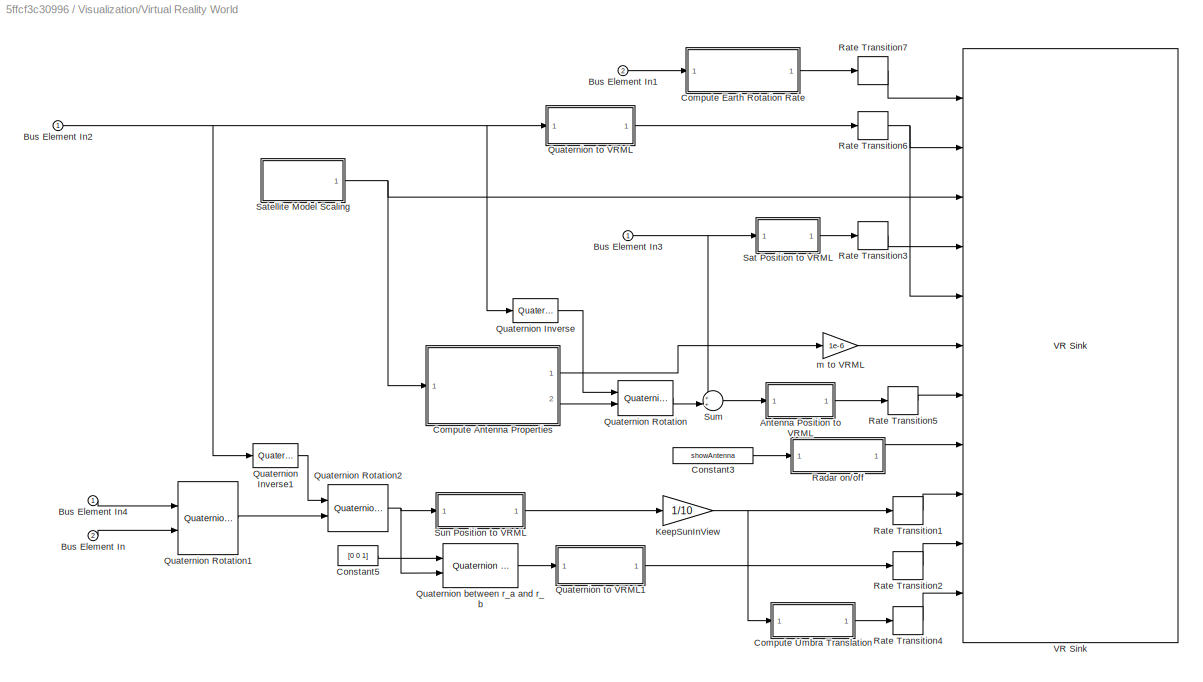
BLOCK [SubSystem] Visualization/Virtual Reality World
  Ports = [2]
  RequestExecContextInheritance = off
  VariantControl = visSL3D
BLOCK [SubSystem] Visualization/Virtual Reality World/Antenna Position to VRML
  Ports = [1, 1]
  RequestExecContextInheritance = off
BLOCK [SubSystem] Visualization/Virtual Reality World/Antenna Position to VRML/ECEF to VRML
  Ports = [1, 1]
  RequestExecContextInheritance = off
BLOCK [Inport] Visualization/Virtual Reality World/Antenna Position to VRML/ECEF to VRML/M
  PortDimensions = 3
BLOCK [Selector] Visualization/Virtual Reality World/Antenna Position to VRML/ECEF to VRML/Selector
  IndexOptions = Index vector (dialog)
  Indices = [2 3 1]
  InputPortWidth = 3
  OutputSizes = 1
  Ports = [1, 1]
BLOCK [Outport] Visualization/Virtual Reality World/Antenna Position to VRML/ECEF to VRML/VR
  PortDimensions = 3
  VectorParamsAs1DForOutWhenUnconnected = off
BLOCK [Reference] Visualization/Virtual Reality World/Antenna Position to VRML/Length Conversion  REF=aerolibconvert2/Length Conversion
  Ports = [1, 1]
  SourceBlock = aerolibconvert2/Length Conversion
  SourceProductBaseCode = AE
  SourceType = Length Conversion
BLOCK [Gain] Visualization/Virtual Reality World/Antenna Position to VRML/km to VRML units
  Gain = 1/1000
BLOCK [Inport] Visualization/Virtual Reality World/Antenna Position to VRML/x
BLOCK [Outport] Visualization/Virtual Reality World/Antenna Position to VRML/xVRML
  VectorParamsAs1DForOutWhenUnconnected = off
BLOCK [Inport] Visualization/Virtual Reality World/Bus Element In
  Port = 2
BLOCK [Inport] Visualization/Virtual Reality World/Bus Element In1
  Port = 2
BLOCK [Inport] Visualization/Virtual Reality World/Bus Element In2
BLOCK [Inport] Visualization/Virtual Reality World/Bus Element In3
BLOCK [Inport] Visualization/Virtual Reality World/Bus Element In4
BLOCK [SubSystem] Visualization/Virtual Reality World/Compute Antenna Properties
  Ports = [1, 2]
  RequestExecContextInheritance = off
BLOCK [Outport] Visualization/Virtual Reality World/Compute Antenna Properties/AntennaScale
  VectorParamsAs1DForOutWhenUnconnected = off
BLOCK [Outport] Visualization/Virtual Reality World/Compute Antenna Properties/AntennaTrans
  Port = 2
  VectorParamsAs1DForOutWhenUnconnected = off
BLOCK [Constant] Visualization/Virtual Reality World/Compute Antenna Properties/Constant1
  Value = antennaHalfAngle
BLOCK [Constant] Visualization/Virtual Reality World/Compute Antenna Properties/Constant2
  Value = antennaHeight
BLOCK [Constant] Visualization/Virtual Reality World/Compute Antenna Properties/Constant4
  Value = 0
BLOCK [Gain] Visualization/Virtual Reality World/Compute Antenna Properties/Gain1
  Gain = .5
BLOCK [Gain] Visualization/Virtual Reality World/Compute Antenna Properties/Gain2
  Gain = pi/180
BLOCK [Mux] Visualization/Virtual Reality World/Compute Antenna Properties/Mux1
  DisplayOption = bar
  Inputs = 3
  Ports = [3, 1]
BLOCK [Mux] Visualization/Virtual Reality World/Compute Antenna Properties/Mux2
  DisplayOption = bar
  Inputs = 3
  Ports = [3, 1]
BLOCK [Product] Visualization/Virtual Reality World/Compute Antenna Properties/Product
  Ports = [2, 1]
BLOCK [Inport] Visualization/Virtual Reality World/Compute Antenna Properties/SatScale
BLOCK [Selector] Visualization/Virtual Reality World/Compute Antenna Properties/Selector
  IndexOptions = Index vector (dialog)
  Indices = 1
  InputPortWidth = 3
  OutputSizes = 1
  Ports = [1, 1]
BLOCK [Sum] Visualization/Virtual Reality World/Compute Antenna Properties/Sum1
  Inputs = ++|
  Ports = [2, 1]
BLOCK [Trigonometry] Visualization/Virtual Reality World/Compute Antenna Properties/Trigonometric Function
  Operator = tan
  Ports = [1, 1]
BLOCK [Gain] Visualization/Virtual Reality World/Compute Antenna Properties/gain
  Gain = .25*1e6
BLOCK [SubSystem] Visualization/Virtual Reality World/Compute Earth Rotation Rate
  Ports = [1, 1]
  RequestExecContextInheritance = off
BLOCK [Constant] Visualization/Virtual Reality World/Compute Earth Rotation Rate/Constant
  Value = 0
BLOCK [Constant] Visualization/Virtual Reality World/Compute Earth Rotation Rate/Constant1
  Value = 0
BLOCK [Inport] Visualization/Virtual Reality World/Compute Earth Rotation Rate/EarthRot
BLOCK [Reference] Visualization/Virtual Reality World/Compute Earth Rotation Rate/Euler Angles to Quaternions  REF=aerolibobsolete/Euler Angles to Quaternions
  Ports = [1, 1]
  SourceBlock = aerolibobsolete/Euler Angles to Quaternions
  SourceProductBaseCode = AE
  SourceType = Euler2Quaternion
BLOCK [SubSystem] Visualization/Virtual Reality World/Compute Earth Rotation Rate/Quaternion to VRML
  Ports = [1, 1]
  RequestExecContextInheritance = off
BLOCK [Outport] Visualization/Virtual Reality World/Compute Earth Rotation Rate/Quaternion to VRML/AxisAngle
  VectorParamsAs1DForOutWhenUnconnected = off
BLOCK [Demux] Visualization/Virtual Reality World/Compute Earth Rotation Rate/Quaternion to VRML/Demux
  Ports = [1, 4]
BLOCK [Gain] Visualization/Virtual Reality World/Compute Earth Rotation Rate/Quaternion to VRML/Gain
  Gain = 2
BLOCK [Gain] Visualization/Virtual Reality World/Compute Earth Rotation Rate/Quaternion to VRML/Gain3
  Gain = [-1 1 1 1]
BLOCK [Mux] Visualization/Virtual Reality World/Compute Earth Rotation Rate/Quaternion to VRML/Mux
  DisplayOption = bar
  Ports = [4, 1]
BLOCK [Selector] Visualization/Virtual Reality World/Compute Earth Rotation Rate/Quaternion to VRML/Selector
  IndexOptions = Index vector (dialog)
  Indices = [2 4 3 1]
  InputPortWidth = 4
  OutputSizes = 1
  Ports = [1, 1]
BLOCK [Trigonometry] Visualization/Virtual Reality World/Compute Earth Rotation Rate/Quaternion to VRML/Trigonometric Function
  Operator = acos
  Ports = [1, 1]
BLOCK [Inport] Visualization/Virtual Reality World/Compute Earth Rotation Rate/Quaternion to VRML/q
BLOCK [Sum] Visualization/Virtual Reality World/Compute Earth Rotation Rate/Sum
  Inputs = |++
  Ports = [2, 1]
BLOCK [UnitDelay] Visualization/Virtual Reality World/Compute Earth Rotation Rate/Unit Delay
  HasFrameUpgradeWarning = on
  SampleTime = -1
BLOCK [Outport] Visualization/Virtual Reality World/Compute Earth Rotation Rate/VRMLRot
  VectorParamsAs1DForOutWhenUnconnected = off
BLOCK [Concatenate] Visualization/Virtual Reality World/Compute Earth Rotation Rate/Vector Concatenate
  NumInputs = 3
  Ports = [3, 1]
BLOCK [SubSystem] Visualization/Virtual Reality World/Compute Umbra Translation
  Ports = [1, 1]
  RequestExecContextInheritance = off
BLOCK [Sum] Visualization/Virtual Reality World/Compute Umbra Translation/Add
  IconShape = rectangular
  Ports = [2, 1]
BLOCK [Gain] Visualization/Virtual Reality World/Compute Umbra Translation/ConeHalfLength
  Gain = 692
BLOCK [Inport] Visualization/Virtual Reality World/Compute Umbra Translation/I
BLOCK [Gain] Visualization/Virtual Reality World/Compute Umbra Translation/InvertSunPosECEF
  Gain = -1
BLOCK [Outport] Visualization/Virtual Reality World/Compute Umbra Translation/O
  VectorParamsAs1DForOutWhenUnconnected = off
BLOCK [SubSystem] Visualization/Virtual Reality World/Compute Umbra Translation/unitVec
  Ports = [1, 1]
  RequestExecContextInheritance = off
BLOCK [Product] Visualization/Virtual Reality World/Compute Umbra Translation/unitVec/Divide
  Inputs = */
  Ports = [2, 1]
BLOCK [DotProduct] Visualization/Virtual Reality World/Compute Umbra Translation/unitVec/Dot Product
  OutDataTypeStr = Inherit: Inherit via internal rule
BLOCK [Inport] Visualization/Virtual Reality World/Compute Umbra Translation/unitVec/I
BLOCK [Outport] Visualization/Virtual Reality World/Compute Umbra Translation/unitVec/O
  VectorParamsAs1DForOutWhenUnconnected = off
BLOCK [Sqrt] Visualization/Virtual Reality World/Compute Umbra Translation/unitVec/Sqrt
BLOCK [Constant] Visualization/Virtual Reality World/Constant3
  Value = showAntenna
BLOCK [Constant] Visualization/Virtual Reality World/Constant5
  Value = [0 0 1]
BLOCK [Gain] Visualization/Virtual Reality World/KeepSunInView
  Gain = 1/10
BLOCK [Reference] Visualization/Virtual Reality World/Quaternion Inverse  REF=aerolibutil/Quaternion
Inverse
  Ports = [1, 1]
  SourceBlock = aerolibutil/Quaternion\nInverse
  SourceProductBaseCode = AE
  SourceType = Quaternion Inverse
BLOCK [Reference] Visualization/Virtual Reality World/Quaternion Inverse1  REF=aerolibutil/Quaternion
Inverse
  Ports = [1, 1]
  SourceBlock = aerolibutil/Quaternion\nInverse
  SourceProductBaseCode = AE
  SourceType = Quaternion Inverse
BLOCK [Reference] Visualization/Virtual Reality World/Quaternion Rotation  REF=aerolibutil/Quaternion
Rotation
  Ports = [2, 1]
  SourceBlock = aerolibutil/Quaternion\nRotation
  SourceProductBaseCode = AE
  SourceType = Quaternion Rotation
BLOCK [Reference] Visualization/Virtual Reality World/Quaternion Rotation1  REF=aerolibutil/Quaternion
Rotation
  Ports = [2, 1]
  SourceBlock = aerolibutil/Quaternion\nRotation
  SourceProductBaseCode = AE
  SourceType = Quaternion Rotation
BLOCK [Reference] Visualization/Virtual Reality World/Quaternion Rotation2  REF=aerolibutil/Quaternion
Rotation
  Ports = [2, 1]
  SourceBlock = aerolibutil/Quaternion\nRotation
  SourceProductBaseCode = AE
  SourceType = Quaternion Rotation
BLOCK [Reference] Visualization/Virtual Reality World/Quaternion between r_a and r_b  REF=asbCubeSatBlockLib/Axes Transformations/Attitude Conversion/Quaternion between
r_a and r_b
  Ports = [2, 1]
  SourceBlock = asbCubeSatBlockLib/Axes Transformations/Attitude Conversion/Quaternion between\nr_a and r_b
  SourceProductBaseCode = AERO_CUBESAT
  SourceType = SubSystem
BLOCK [SubSystem] Visualization/Virtual Reality World/Quaternion to VRML
  Ports = [1, 1]
  RequestExecContextInheritance = off
BLOCK [Demux] Visualization/Virtual Reality World/Quaternion to VRML/Demux
  Ports = [1, 4]
BLOCK [Constant] Visualization/Virtual Reality World/Quaternion to VRML/Flip 180 deg
  Value = [0 0 1 0]
BLOCK [Gain] Visualization/Virtual Reality World/Quaternion to VRML/Gain
  Gain = 2
BLOCK [Mux] Visualization/Virtual Reality World/Quaternion to VRML/Mux
  DisplayOption = bar
  Ports = [4, 1]
BLOCK [Reference] Visualization/Virtual Reality World/Quaternion to VRML/Quaternion Multiplication  REF=aerolibutil/Quaternion
Multiplication
  Ports = [2, 1]
  SourceBlock = aerolibutil/Quaternion\nMultiplication
  SourceProductBaseCode = AE
  SourceType = Quaternion Multiplication
BLOCK [Selector] Visualization/Virtual Reality World/Quaternion to VRML/Selector
  IndexOptions = Index vector (dialog)
  Indices = [3 4 2 1]
  InputPortWidth = 4
  OutputSizes = 1
  Ports = [1, 1]
BLOCK [Trigonometry] Visualization/Virtual Reality World/Quaternion to VRML/Trigonometric Function
  Operator = acos
  Ports = [1, 1]
BLOCK [Outport] Visualization/Virtual Reality World/Quaternion to VRML/axis_angle
  VectorParamsAs1DForOutWhenUnconnected = off
BLOCK [Inport] Visualization/Virtual Reality World/Quaternion to VRML/q
BLOCK [SubSystem] Visualization/Virtual Reality World/Quaternion to VRML1
  Ports = [1, 1]
  RequestExecContextInheritance = off
BLOCK [Demux] Visualization/Virtual Reality World/Quaternion to VRML1/Demux
  Ports = [1, 4]
BLOCK [Constant] Visualization/Virtual Reality World/Quaternion to VRML1/Flip 180 deg
  Value = [0 0 1 0]
BLOCK [Gain] Visualization/Virtual Reality World/Quaternion to VRML1/Gain
  Gain = 2
BLOCK [Mux] Visualization/Virtual Reality World/Quaternion to VRML1/Mux
  DisplayOption = bar
  Ports = [4, 1]
BLOCK [Reference] Visualization/Virtual Reality World/Quaternion to VRML1/Quaternion Multiplication  REF=aerolibutil/Quaternion
Multiplication
  Ports = [2, 1]
  SourceBlock = aerolibutil/Quaternion\nMultiplication
  SourceProductBaseCode = AE
  SourceType = Quaternion Multiplication
BLOCK [Selector] Visualization/Virtual Reality World/Quaternion to VRML1/Selector
  IndexOptions = Index vector (dialog)
  Indices = [3 4 2 1]
  InputPortWidth = 4
  OutputSizes = 1
  Ports = [1, 1]
BLOCK [Trigonometry] Visualization/Virtual Reality World/Quaternion to VRML1/Trigonometric Function
  Operator = acos
  Ports = [1, 1]
BLOCK [Outport] Visualization/Virtual Reality World/Quaternion to VRML1/axis_angle
  VectorParamsAs1DForOutWhenUnconnected = off
BLOCK [Inport] Visualization/Virtual Reality World/Quaternion to VRML1/q
BLOCK [SubSystem] Visualization/Virtual Reality World/Radar on//off
  Ports = [1, 1]
  RequestExecContextInheritance = off
BLOCK [Sum] Visualization/Virtual Reality World/Radar on//off/Add
  IconShape = rectangular
  Inputs = -+
  Ports = [2, 1]
BLOCK [Reference] Visualization/Virtual Reality World/Radar on//off/Compare To Constant  REF=simulink/Logic and Bit
Operations/Compare
To Constant
  Ports = [1, 1]
  SourceBlock = simulink/Logic and Bit\nOperations/Compare\nTo Constant
  SourceProductBaseCode = SL
  SourceType = Compare To Constant
BLOCK [Constant] Visualization/Virtual Reality World/Radar on//off/Constant
BLOCK [DataTypeConversion] Visualization/Virtual Reality World/Radar on//off/Data Type Conversion
  OutDataTypeStr = double
  RndMeth = Floor
  SaturateOnIntegerOverflow = off
BLOCK [Gain] Visualization/Virtual Reality World/Radar on//off/Gain
  Gain = 0.6
BLOCK [Inport] Visualization/Virtual Reality World/Radar on//off/NavMode
BLOCK [Outport] Visualization/Virtual Reality World/Radar on//off/Radar
  VectorParamsAs1DForOutWhenUnconnected = off
BLOCK [RateTransition] Visualization/Virtual Reality World/Rate Transition1
BLOCK [RateTransition] Visualization/Virtual Reality World/Rate Transition2
BLOCK [RateTransition] Visualization/Virtual Reality World/Rate Transition3
BLOCK [RateTransition] Visualization/Virtual Reality World/Rate Transition4
BLOCK [RateTransition] Visualization/Virtual Reality World/Rate Transition5
BLOCK [RateTransition] Visualization/Virtual Reality World/Rate Transition6
BLOCK [RateTransition] Visualization/Virtual Reality World/Rate Transition7
BLOCK [SubSystem] Visualization/Virtual Reality World/Sat Position to VRML
  Ports = [1, 1]
  RequestExecContextInheritance = off
BLOCK [SubSystem] Visualization/Virtual Reality World/Sat Position to VRML/ECEF to VRML
  Ports = [1, 1]
  RequestExecContextInheritance = off
BLOCK [Inport] Visualization/Virtual Reality World/Sat Position to VRML/ECEF to VRML/M
  PortDimensions = 3
BLOCK [Selector] Visualization/Virtual Reality World/Sat Position to VRML/ECEF to VRML/Selector
  IndexOptions = Index vector (dialog)
  Indices = [2 3 1]
  InputPortWidth = 3
  OutputSizes = 1
  Ports = [1, 1]
BLOCK [Outport] Visualization/Virtual Reality World/Sat Position to VRML/ECEF to VRML/VR
  PortDimensions = 3
  VectorParamsAs1DForOutWhenUnconnected = off
BLOCK [Reference] Visualization/Virtual Reality World/Sat Position to VRML/Length Conversion  REF=aerolibconvert2/Length Conversion
  Ports = [1, 1]
  SourceBlock = aerolibconvert2/Length Conversion
  SourceProductBaseCode = AE
  SourceType = Length Conversion
BLOCK [Gain] Visualization/Virtual Reality World/Sat Position to VRML/km to VRML units
  Gain = 1/1000
BLOCK [Inport] Visualization/Virtual Reality World/Sat Position to VRML/x
BLOCK [Outport] Visualization/Virtual Reality World/Sat Position to VRML/xVRML
  VectorParamsAs1DForOutWhenUnconnected = off
BLOCK [SubSystem] Visualization/Virtual Reality World/Satellite Model Scaling
  Ports = [0, 1]
  RequestExecContextInheritance = off
BLOCK [Constant] Visualization/Virtual Reality World/Satellite Model Scaling/Constant
  Value = cubesatSize
BLOCK [Mux] Visualization/Virtual Reality World/Satellite Model Scaling/Mux
  DisplayOption = bar
  Inputs = 3
  Ports = [3, 1]
BLOCK [Outport] Visualization/Virtual Reality World/Satellite Model Scaling/Out1
  VectorParamsAs1DForOutWhenUnconnected = off
BLOCK [Gain] Visualization/Virtual Reality World/Satellite Model Scaling/ScaleModelToVRML
  Gain = 1/.3e6
BLOCK [Sum] Visualization/Virtual Reality World/Sum
  Inputs = ++|
  Ports = [2, 1]
BLOCK [SubSystem] Visualization/Virtual Reality World/Sun Position to VRML
  Ports = [1, 1]
  RequestExecContextInheritance = off
BLOCK [SubSystem] Visualization/Virtual Reality World/Sun Position to VRML/ECEF to VRML
  Ports = [1, 1]
  RequestExecContextInheritance = off
BLOCK [Inport] Visualization/Virtual Reality World/Sun Position to VRML/ECEF to VRML/M
  PortDimensions = 3
BLOCK [Selector] Visualization/Virtual Reality World/Sun Position to VRML/ECEF to VRML/Selector
  IndexOptions = Index vector (dialog)
  Indices = [2 3 1]
  InputPortWidth = 3
  OutputSizes = 1
  Ports = [1, 1]
BLOCK [Outport] Visualization/Virtual Reality World/Sun Position to VRML/ECEF to VRML/VR
  PortDimensions = 3
  VectorParamsAs1DForOutWhenUnconnected = off
BLOCK [Reference] Visualization/Virtual Reality World/Sun Position to VRML/Length Conversion  REF=aerolibconvert2/Length Conversion
  Ports = [1, 1]
  SourceBlock = aerolibconvert2/Length Conversion
  SourceProductBaseCode = AE
  SourceType = Length Conversion
BLOCK [Gain] Visualization/Virtual Reality World/Sun Position to VRML/km to VRML units
  Gain = 1/1000
BLOCK [Inport] Visualization/Virtual Reality World/Sun Position to VRML/x
BLOCK [Outport] Visualization/Virtual Reality World/Sun Position to VRML/xVRML
  VectorParamsAs1DForOutWhenUnconnected = off
BLOCK [Reference] Visualization/Virtual Reality World/VR Sink  REF=vrlib/VR Sink
  InstantiateOnLoad = on
  Ports = [11]
  SourceBlock = vrlib/VR Sink
  SourceProductBaseCode = SL
  SourceType = Virtual Reality Sink
BLOCK [Gain] Visualization/Virtual Reality World/m to VRML
  Gain = 1e-6
ANNOTATION (root): CuBy CubeSat Simulation
ANNOTATION (root): Trust Force (µN)
ANNOTATION (root): <copyright redacted>
ANNOTATION (root): CubeSat
ANNOTATION (root): Duration (min)
ANNOTATION (root): Environment
ANNOTATION (root): Mission Configuration
ANNOTATION (root): Spherical Harmoincs Degree
ANNOTATION (root): Thrust Panel
ANNOTATION (root): Thrust per Orbit
ANNOTATION (root): Visualization
ANNOTATION Pointing Mode: Modes: 0 = Off 1 = Earth (Nadir) 2 = Sun
ANNOTATION Vehicle Model: Flight Software
ANNOTATION Vehicle Model: Plant Model
NET Enviroment:1 -> Goto1:1, Vehicle Model:1
LINE External Forces and Torques/Add:1 -> External Forces and Torques/Subtract Perturbations :2
NET External Forces and Torques/Bus Element In6:1 -> External Forces and Torques/Perturbations Due to Atmospheric Drag:2, External Forces and Torques/Scope:1
NET External Forces and Torques/Bus Element In:1 -> External Forces and Torques/Perturbations Due to Atmospheric Drag:1, External Forces and Torques/Thruster:1
LINE External Forces and Torques/F_y:1 -> External Forces and Torques/Vector Concatenate:2
LINE External Forces and Torques/F_z:1 -> External Forces and Torques/Vector Concatenate:3
LINE External Forces and Torques/Forces_Body:1 -> External Forces and Torques/Add:1
LINE External Forces and Torques/Integrator:1 -> External Forces and Torques/Multiport Switch:3
NET External Forces and Torques/Multiport Switch:1 -> External Forces and Torques/Rate Transition:1, External Forces and Torques/Scope1:1
LINE External Forces and Torques/Mux:1 -> External Forces and Torques/Ext:1
LINE External Forces and Torques/Perturbations Due to Atmospheric Drag/Add:1 -> External Forces and Torques/Perturbations Due to Atmospheric Drag/Reshape2:1
LINE External Forces and Torques/Perturbations Due to Atmospheric Drag/Aerodynamic drag equation:1 -> External Forces and Torques/Perturbations Due to Atmospheric Drag/out_dragforce_N:1
LINE External Forces and Torques/Perturbations Due to Atmospheric Drag/Area:1 -> External Forces and Torques/Perturbations Due to Atmospheric Drag/Aerodynamic drag equation:4
LINE External Forces and Torques/Perturbations Due to Atmospheric Drag/Atmospere Models/ISA/Demux1:1 -> External Forces and Torques/Perturbations Due to Atmospheric Drag/Atmospere Models/ISA/LatLon:1
LINE External Forces and Torques/Perturbations Due to Atmospheric Drag/Atmospere Models/ISA/Demux1:2 -> External Forces and Torques/Perturbations Due to Atmospheric Drag/Atmospere Models/ISA/ISA Atmosphere Model:1
LINE External Forces and Torques/Perturbations Due to Atmospheric Drag/Atmospere Models/ISA/ISA Atmosphere Model:1 -> External Forces and Torques/Perturbations Due to Atmospheric Drag/Atmospere Models/ISA/Terminator1:1
LINE External Forces and Torques/Perturbations Due to Atmospheric Drag/Atmospere Models/ISA/ISA Atmosphere Model:2 -> External Forces and Torques/Perturbations Due to Atmospheric Drag/Atmospere Models/ISA/Terminator2:1
LINE External Forces and Torques/Perturbations Due to Atmospheric Drag/Atmospere Models/ISA/ISA Atmosphere Model:3 -> External Forces and Torques/Perturbations Due to Atmospheric Drag/Atmospere Models/ISA/Terminator:1
LINE External Forces and Torques/Perturbations Due to Atmospheric Drag/Atmospere Models/ISA/ISA Atmosphere Model:4 -> External Forces and Torques/Perturbations Due to Atmospheric Drag/Atmospere Models/ISA/Reshape1:1
LINE External Forces and Torques/Perturbations Due to Atmospheric Drag/Atmospere Models/ISA/LatLonAlt:1 -> External Forces and Torques/Perturbations Due to Atmospheric Drag/Atmospere Models/ISA/Demux1:1
LINE External Forces and Torques/Perturbations Due to Atmospheric Drag/Atmospere Models/ISA/Reshape1:1 -> External Forces and Torques/Perturbations Due to Atmospheric Drag/Atmospere Models/ISA/Total mass density:1
LINE External Forces and Torques/Perturbations Due to Atmospheric Drag/Atmospere Models/ISA/doy:1 -> External Forces and Torques/Perturbations Due to Atmospheric Drag/Atmospere Models/ISA/Terminator4:1
LINE External Forces and Torques/Perturbations Due to Atmospheric Drag/Atmospere Models/ISA/second:1 -> External Forces and Torques/Perturbations Due to Atmospheric Drag/Atmospere Models/ISA/Terminator5:1
LINE External Forces and Torques/Perturbations Due to Atmospheric Drag/Atmospere Models/ISA/year:1 -> External Forces and Torques/Perturbations Due to Atmospheric Drag/Atmospere Models/ISA/Terminator3:1
LINE External Forces and Torques/Perturbations Due to Atmospheric Drag/Atmospere Models/NRLMSISE-00 Atmosphere Model Solar/LatLonAlt:1 -> External Forces and Torques/Perturbations Due to Atmospheric Drag/Atmospere Models/NRLMSISE-00 Atmosphere Model Solar/NRLMSISE-00 Atmosphere Model1:1
LINE External Forces and Torques/Perturbations Due to Atmospheric Drag/Atmospere Models/NRLMSISE-00 Atmosphere Model Solar/NRLMSISE-00 Atmosphere Model1:1 -> External Forces and Torques/Perturbations Due to Atmospheric Drag/Atmospere Models/NRLMSISE-00 Atmosphere Model Solar/Terminator4:1
LINE External Forces and Torques/Perturbations Due to Atmospheric Drag/Atmospere Models/NRLMSISE-00 Atmosphere Model Solar/NRLMSISE-00 Atmosphere Model1:2 -> External Forces and Torques/Perturbations Due to Atmospheric Drag/Atmospere Models/NRLMSISE-00 Atmosphere Model Solar/Subsystem1:1
LINE External Forces and Torques/Perturbations Due to Atmospheric Drag/Atmospere Models/NRLMSISE-00 Atmosphere Model Solar/Subsystem/1-D Lookup Table:1 -> External Forces and Torques/Perturbations Due to Atmospheric Drag/Atmospere Models/NRLMSISE-00 Atmosphere Model Solar/Subsystem/F10.7:1
LINE External Forces and Torques/Perturbations Due to Atmospheric Drag/Atmospere Models/NRLMSISE-00 Atmosphere Model Solar/Subsystem/Ap Lookup Table:1 -> External Forces and Torques/Perturbations Due to Atmospheric Drag/Atmospere Models/NRLMSISE-00 Atmosphere Model Solar/Subsystem/MATLAB Function2:1
LINE External Forces and Torques/Perturbations Due to Atmospheric Drag/Atmospere Models/NRLMSISE-00 Atmosphere Model Solar/Subsystem/DOY:1 -> External Forces and Torques/Perturbations Due to Atmospheric Drag/Atmospere Models/NRLMSISE-00 Atmosphere Model Solar/Subsystem/MATLAB Function:2
LINE External Forces and Torques/Perturbations Due to Atmospheric Drag/Atmospere Models/NRLMSISE-00 Atmosphere Model Solar/Subsystem/MATLAB Function2:1 -> External Forces and Torques/Perturbations Due to Atmospheric Drag/Atmospere Models/NRLMSISE-00 Atmosphere Model Solar/Subsystem/Ap_vec:1
NET External Forces and Torques/Perturbations Due to Atmospheric Drag/Atmospere Models/NRLMSISE-00 Atmosphere Model Solar/Subsystem/MATLAB Function:1 -> External Forces and Torques/Perturbations Due to Atmospheric Drag/Atmospere Models/NRLMSISE-00 Atmosphere Model Solar/Subsystem/1-D Lookup Table:1, External Forces and Torques/Perturbations Due to Atmospheric Drag/Atmospere Models/NRLMSISE-00 Atmosphere Model Solar/Subsystem/Ap Lookup Table:1
LINE External Forces and Torques/Perturbations Due to Atmospheric Drag/Atmospere Models/NRLMSISE-00 Atmosphere Model Solar/Subsystem/year:1 -> External Forces and Torques/Perturbations Due to Atmospheric Drag/Atmospere Models/NRLMSISE-00 Atmosphere Model Solar/Subsystem/MATLAB Function:1
LINE External Forces and Torques/Perturbations Due to Atmospheric Drag/Atmospere Models/NRLMSISE-00 Atmosphere Model Solar/Subsystem1/Demux:1 -> External Forces and Torques/Perturbations Due to Atmospheric Drag/Atmospere Models/NRLMSISE-00 Atmosphere Model Solar/Subsystem1/Density of He:1
LINE External Forces and Torques/Perturbations Due to Atmospheric Drag/Atmospere Models/NRLMSISE-00 Atmosphere Model Solar/Subsystem1/Demux:2 -> External Forces and Torques/Perturbations Due to Atmospheric Drag/Atmospere Models/NRLMSISE-00 Atmosphere Model Solar/Subsystem1/Density of O:1
LINE External Forces and Torques/Perturbations Due to Atmospheric Drag/Atmospere Models/NRLMSISE-00 Atmosphere Model Solar/Subsystem1/Demux:3 -> External Forces and Torques/Perturbations Due to Atmospheric Drag/Atmospere Models/NRLMSISE-00 Atmosphere Model Solar/Subsystem1/Density of N2:1
LINE External Forces and Torques/Perturbations Due to Atmospheric Drag/Atmospere Models/NRLMSISE-00 Atmosphere Model Solar/Subsystem1/Demux:4 -> External Forces and Torques/Perturbations Due to Atmospheric Drag/Atmospere Models/NRLMSISE-00 Atmosphere Model Solar/Subsystem1/Density of O2:1
LINE External Forces and Torques/Perturbations Due to Atmospheric Drag/Atmospere Models/NRLMSISE-00 Atmosphere Model Solar/Subsystem1/Demux:5 -> External Forces and Torques/Perturbations Due to Atmospheric Drag/Atmospere Models/NRLMSISE-00 Atmosphere Model Solar/Subsystem1/Density of Ar:1
LINE External Forces and Torques/Perturbations Due to Atmospheric Drag/Atmospere Models/NRLMSISE-00 Atmosphere Model Solar/Subsystem1/Demux:6 -> External Forces and Torques/Perturbations Due to Atmospheric Drag/Atmospere Models/NRLMSISE-00 Atmosphere Model Solar/Subsystem1/Reshape3:1
LINE External Forces and Torques/Perturbations Due to Atmospheric Drag/Atmospere Models/NRLMSISE-00 Atmosphere Model Solar/Subsystem1/Demux:7 -> External Forces and Torques/Perturbations Due to Atmospheric Drag/Atmospere Models/NRLMSISE-00 Atmosphere Model Solar/Subsystem1/Density of H:1
LINE External Forces and Torques/Perturbations Due to Atmospheric Drag/Atmospere Models/NRLMSISE-00 Atmosphere Model Solar/Subsystem1/Demux:8 -> External Forces and Torques/Perturbations Due to Atmospheric Drag/Atmospere Models/NRLMSISE-00 Atmosphere Model Solar/Subsystem1/Density of N:1
LINE External Forces and Torques/Perturbations Due to Atmospheric Drag/Atmospere Models/NRLMSISE-00 Atmosphere Model Solar/Subsystem1/Demux:9 -> External Forces and Torques/Perturbations Due to Atmospheric Drag/Atmospere Models/NRLMSISE-00 Atmosphere Model Solar/Subsystem1/Anomalous oxygen number density:1
LINE External Forces and Torques/Perturbations Due to Atmospheric Drag/Atmospere Models/NRLMSISE-00 Atmosphere Model Solar/Subsystem1/In1:1 -> External Forces and Torques/Perturbations Due to Atmospheric Drag/Atmospere Models/NRLMSISE-00 Atmosphere Model Solar/Subsystem1/Demux:1
LINE External Forces and Torques/Perturbations Due to Atmospheric Drag/Atmospere Models/NRLMSISE-00 Atmosphere Model Solar/Subsystem1/Reshape3:1 -> External Forces and Torques/Perturbations Due to Atmospheric Drag/Atmospere Models/NRLMSISE-00 Atmosphere Model Solar/Subsystem1/Total mass density:1
LINE External Forces and Torques/Perturbations Due to Atmospheric Drag/Atmospere Models/NRLMSISE-00 Atmosphere Model Solar/Subsystem1:1 -> External Forces and Torques/Perturbations Due to Atmospheric Drag/Atmospere Models/NRLMSISE-00 Atmosphere Model Solar/Total mass density:1
LINE External Forces and Torques/Perturbations Due to Atmospheric Drag/Atmospere Models/NRLMSISE-00 Atmosphere Model Solar/Subsystem2/DOY:1 -> External Forces and Torques/Perturbations Due to Atmospheric Drag/Atmospere Models/NRLMSISE-00 Atmosphere Model Solar/Subsystem2/Subsystem:2
LINE External Forces and Torques/Perturbations Due to Atmospheric Drag/Atmospere Models/NRLMSISE-00 Atmosphere Model Solar/Subsystem2/Rate Transition 1 Day1:1 -> External Forces and Torques/Perturbations Due to Atmospheric Drag/Atmospere Models/NRLMSISE-00 Atmosphere Model Solar/Subsystem2/Out1:1
LINE External Forces and Torques/Perturbations Due to Atmospheric Drag/Atmospere Models/NRLMSISE-00 Atmosphere Model Solar/Subsystem2/Rate Transition 1 Day:1 -> External Forces and Torques/Perturbations Due to Atmospheric Drag/Atmospere Models/NRLMSISE-00 Atmosphere Model Solar/Subsystem2/Out2:1
LINE External Forces and Torques/Perturbations Due to Atmospheric Drag/Atmospere Models/NRLMSISE-00 Atmosphere Model Solar/Subsystem2/Subsystem/1-D Lookup Table:1 -> External Forces and Torques/Perturbations Due to Atmospheric Drag/Atmospere Models/NRLMSISE-00 Atmosphere Model Solar/Subsystem2/Subsystem/Out1:1
LINE External Forces and Torques/Perturbations Due to Atmospheric Drag/Atmospere Models/NRLMSISE-00 Atmosphere Model Solar/Subsystem2/Subsystem/Ap Lookup Table:1 -> External Forces and Torques/Perturbations Due to Atmospheric Drag/Atmospere Models/NRLMSISE-00 Atmosphere Model Solar/Subsystem2/Subsystem/MATLAB Function2:1
LINE External Forces and Torques/Perturbations Due to Atmospheric Drag/Atmospere Models/NRLMSISE-00 Atmosphere Model Solar/Subsystem2/Subsystem/DOY:1 -> External Forces and Torques/Perturbations Due to Atmospheric Drag/Atmospere Models/NRLMSISE-00 Atmosphere Model Solar/Subsystem2/Subsystem/MATLAB Function:2
LINE External Forces and Torques/Perturbations Due to Atmospheric Drag/Atmospere Models/NRLMSISE-00 Atmosphere Model Solar/Subsystem2/Subsystem/MATLAB Function2:1 -> External Forces and Torques/Perturbations Due to Atmospheric Drag/Atmospere Models/NRLMSISE-00 Atmosphere Model Solar/Subsystem2/Subsystem/Ap_vec:1
NET External Forces and Torques/Perturbations Due to Atmospheric Drag/Atmospere Models/NRLMSISE-00 Atmosphere Model Solar/Subsystem2/Subsystem/MATLAB Function:1 -> External Forces and Torques/Perturbations Due to Atmospheric Drag/Atmospere Models/NRLMSISE-00 Atmosphere Model Solar/Subsystem2/Subsystem/1-D Lookup Table:1, External Forces and Torques/Perturbations Due to Atmospheric Drag/Atmospere Models/NRLMSISE-00 Atmosphere Model Solar/Subsystem2/Subsystem/Ap Lookup Table:1
LINE External Forces and Torques/Perturbations Due to Atmospheric Drag/Atmospere Models/NRLMSISE-00 Atmosphere Model Solar/Subsystem2/Subsystem/year:1 -> External Forces and Torques/Perturbations Due to Atmospheric Drag/Atmospere Models/NRLMSISE-00 Atmosphere Model Solar/Subsystem2/Subsystem/MATLAB Function:1
LINE External Forces and Torques/Perturbations Due to Atmospheric Drag/Atmospere Models/NRLMSISE-00 Atmosphere Model Solar/Subsystem2/Subsystem:1 -> External Forces and Torques/Perturbations Due to Atmospheric Drag/Atmospere Models/NRLMSISE-00 Atmosphere Model Solar/Subsystem2/Rate Transition 1 Day1:1
LINE External Forces and Torques/Perturbations Due to Atmospheric Drag/Atmospere Models/NRLMSISE-00 Atmosphere Model Solar/Subsystem2/Subsystem:2 -> External Forces and Torques/Perturbations Due to Atmospheric Drag/Atmospere Models/NRLMSISE-00 Atmosphere Model Solar/Subsystem2/Rate Transition 1 Day:1
LINE External Forces and Torques/Perturbations Due to Atmospheric Drag/Atmospere Models/NRLMSISE-00 Atmosphere Model Solar/Subsystem2/year:1 -> External Forces and Torques/Perturbations Due to Atmospheric Drag/Atmospere Models/NRLMSISE-00 Atmosphere Model Solar/Subsystem2/Subsystem:1
NET External Forces and Torques/Perturbations Due to Atmospheric Drag/Atmospere Models/NRLMSISE-00 Atmosphere Model Solar/Subsystem:1 -> External Forces and Torques/Perturbations Due to Atmospheric Drag/Atmospere Models/NRLMSISE-00 Atmosphere Model Solar/NRLMSISE-00 Atmosphere Model1:5, External Forces and Torques/Perturbations Due to Atmospheric Drag/Atmospere Models/NRLMSISE-00 Atmosphere Model Solar/NRLMSISE-00 Atmosphere Model1:6
LINE External Forces and Torques/Perturbations Due to Atmospheric Drag/Atmospere Models/NRLMSISE-00 Atmosphere Model Solar/Subsystem:2 -> External Forces and Torques/Perturbations Due to Atmospheric Drag/Atmospere Models/NRLMSISE-00 Atmosphere Model Solar/NRLMSISE-00 Atmosphere Model1:7
NET External Forces and Torques/Perturbations Due to Atmospheric Drag/Atmospere Models/NRLMSISE-00 Atmosphere Model Solar/doy:1 -> External Forces and Torques/Perturbations Due to Atmospheric Drag/Atmospere Models/NRLMSISE-00 Atmosphere Model Solar/NRLMSISE-00 Atmosphere Model1:3, External Forces and Torques/Perturbations Due to Atmospheric Drag/Atmospere Models/NRLMSISE-00 Atmosphere Model Solar/Subsystem:2
LINE External Forces and Torques/Perturbations Due to Atmospheric Drag/Atmospere Models/NRLMSISE-00 Atmosphere Model Solar/second:1 -> External Forces and Torques/Perturbations Due to Atmospheric Drag/Atmospere Models/NRLMSISE-00 Atmosphere Model Solar/NRLMSISE-00 Atmosphere Model1:4
NET External Forces and Torques/Perturbations Due to Atmospheric Drag/Atmospere Models/NRLMSISE-00 Atmosphere Model Solar/year:1 -> External Forces and Torques/Perturbations Due to Atmospheric Drag/Atmospere Models/NRLMSISE-00 Atmosphere Model Solar/NRLMSISE-00 Atmosphere Model1:2, External Forces and Torques/Perturbations Due to Atmospheric Drag/Atmospere Models/NRLMSISE-00 Atmosphere Model Solar/Subsystem:1
LINE External Forces and Torques/Perturbations Due to Atmospheric Drag/Atmospere Models/NRLMSISE-00 Atmosphere Model/LatLonAlt:1 -> External Forces and Torques/Perturbations Due to Atmospheric Drag/Atmospere Models/NRLMSISE-00 Atmosphere Model/NRLMSISE-00 Atmosphere Model:1
LINE External Forces and Torques/Perturbations Due to Atmospheric Drag/Atmospere Models/NRLMSISE-00 Atmosphere Model/NRLMSISE-00 Atmosphere Model:1 -> External Forces and Torques/Perturbations Due to Atmospheric Drag/Atmospere Models/NRLMSISE-00 Atmosphere Model/Terminator3:1
LINE External Forces and Torques/Perturbations Due to Atmospheric Drag/Atmospere Models/NRLMSISE-00 Atmosphere Model/NRLMSISE-00 Atmosphere Model:2 -> External Forces and Torques/Perturbations Due to Atmospheric Drag/Atmospere Models/NRLMSISE-00 Atmosphere Model/Subsystem:1
LINE External Forces and Torques/Perturbations Due to Atmospheric Drag/Atmospere Models/NRLMSISE-00 Atmosphere Model/Subsystem/Demux:1 -> External Forces and Torques/Perturbations Due to Atmospheric Drag/Atmospere Models/NRLMSISE-00 Atmosphere Model/Subsystem/Density of He:1
LINE External Forces and Torques/Perturbations Due to Atmospheric Drag/Atmospere Models/NRLMSISE-00 Atmosphere Model/Subsystem/Demux:2 -> External Forces and Torques/Perturbations Due to Atmospheric Drag/Atmospere Models/NRLMSISE-00 Atmosphere Model/Subsystem/Density of O:1
LINE External Forces and Torques/Perturbations Due to Atmospheric Drag/Atmospere Models/NRLMSISE-00 Atmosphere Model/Subsystem/Demux:3 -> External Forces and Torques/Perturbations Due to Atmospheric Drag/Atmospere Models/NRLMSISE-00 Atmosphere Model/Subsystem/Density of N2:1
LINE External Forces and Torques/Perturbations Due to Atmospheric Drag/Atmospere Models/NRLMSISE-00 Atmosphere Model/Subsystem/Demux:4 -> External Forces and Torques/Perturbations Due to Atmospheric Drag/Atmospere Models/NRLMSISE-00 Atmosphere Model/Subsystem/Density of O2:1
LINE External Forces and Torques/Perturbations Due to Atmospheric Drag/Atmospere Models/NRLMSISE-00 Atmosphere Model/Subsystem/Demux:5 -> External Forces and Torques/Perturbations Due to Atmospheric Drag/Atmospere Models/NRLMSISE-00 Atmosphere Model/Subsystem/Density of Ar:1
LINE External Forces and Torques/Perturbations Due to Atmospheric Drag/Atmospere Models/NRLMSISE-00 Atmosphere Model/Subsystem/Demux:6 -> External Forces and Torques/Perturbations Due to Atmospheric Drag/Atmospere Models/NRLMSISE-00 Atmosphere Model/Subsystem/Reshape:1
LINE External Forces and Torques/Perturbations Due to Atmospheric Drag/Atmospere Models/NRLMSISE-00 Atmosphere Model/Subsystem/Demux:7 -> External Forces and Torques/Perturbations Due to Atmospheric Drag/Atmospere Models/NRLMSISE-00 Atmosphere Model/Subsystem/Density of H:1
LINE External Forces and Torques/Perturbations Due to Atmospheric Drag/Atmospere Models/NRLMSISE-00 Atmosphere Model/Subsystem/Demux:8 -> External Forces and Torques/Perturbations Due to Atmospheric Drag/Atmospere Models/NRLMSISE-00 Atmosphere Model/Subsystem/Density of N:1
LINE External Forces and Torques/Perturbations Due to Atmospheric Drag/Atmospere Models/NRLMSISE-00 Atmosphere Model/Subsystem/Demux:9 -> External Forces and Torques/Perturbations Due to Atmospheric Drag/Atmospere Models/NRLMSISE-00 Atmosphere Model/Subsystem/Anomalous oxygen number density:1
LINE External Forces and Torques/Perturbations Due to Atmospheric Drag/Atmospere Models/NRLMSISE-00 Atmosphere Model/Subsystem/In1:1 -> External Forces and Torques/Perturbations Due to Atmospheric Drag/Atmospere Models/NRLMSISE-00 Atmosphere Model/Subsystem/Demux:1
LINE External Forces and Torques/Perturbations Due to Atmospheric Drag/Atmospere Models/NRLMSISE-00 Atmosphere Model/Subsystem/Reshape:1 -> External Forces and Torques/Perturbations Due to Atmospheric Drag/Atmospere Models/NRLMSISE-00 Atmosphere Model/Subsystem/Total mass density:1
LINE External Forces and Torques/Perturbations Due to Atmospheric Drag/Atmospere Models/NRLMSISE-00 Atmosphere Model/Subsystem:1 -> External Forces and Torques/Perturbations Due to Atmospheric Drag/Atmospere Models/NRLMSISE-00 Atmosphere Model/Total mass density:1
LINE External Forces and Torques/Perturbations Due to Atmospheric Drag/Atmospere Models/NRLMSISE-00 Atmosphere Model/doy:1 -> External Forces and Torques/Perturbations Due to Atmospheric Drag/Atmospere Models/NRLMSISE-00 Atmosphere Model/NRLMSISE-00 Atmosphere Model:3
LINE External Forces and Torques/Perturbations Due to Atmospheric Drag/Atmospere Models/NRLMSISE-00 Atmosphere Model/second:1 -> External Forces and Torques/Perturbations Due to Atmospheric Drag/Atmospere Models/NRLMSISE-00 Atmosphere Model/NRLMSISE-00 Atmosphere Model:4
LINE External Forces and Torques/Perturbations Due to Atmospheric Drag/Atmospere Models/NRLMSISE-00 Atmosphere Model/year:1 -> External Forces and Torques/Perturbations Due to Atmospheric Drag/Atmospere Models/NRLMSISE-00 Atmosphere Model/NRLMSISE-00 Atmosphere Model:2
LINE External Forces and Torques/Perturbations Due to Atmospheric Drag/Atmospere Models/No Drag/Case 1: No Drag:1 -> External Forces and Torques/Perturbations Due to Atmospheric Drag/Atmospere Models/No Drag/Total mass density:1
LINE External Forces and Torques/Perturbations Due to Atmospheric Drag/Atmospere Models/No Drag/LatLonAlt:1 -> External Forces and Torques/Perturbations Due to Atmospheric Drag/Atmospere Models/No Drag/Terminator:1
LINE External Forces and Torques/Perturbations Due to Atmospheric Drag/Atmospere Models/No Drag/doy:1 -> External Forces and Torques/Perturbations Due to Atmospheric Drag/Atmospere Models/No Drag/Terminator2:1
LINE External Forces and Torques/Perturbations Due to Atmospheric Drag/Atmospere Models/No Drag/second:1 -> External Forces and Torques/Perturbations Due to Atmospheric Drag/Atmospere Models/No Drag/Terminator3:1
LINE External Forces and Torques/Perturbations Due to Atmospheric Drag/Atmospere Models/No Drag/year:1 -> External Forces and Torques/Perturbations Due to Atmospheric Drag/Atmospere Models/No Drag/Terminator1:1
NET External Forces and Torques/Perturbations Due to Atmospheric Drag/Atmospere Models:1 -> External Forces and Torques/Perturbations Due to Atmospheric Drag/Aerodynamic drag equation:2, External Forces and Torques/Perturbations Due to Atmospheric Drag/Display2:1
LINE External Forces and Torques/Perturbations Due to Atmospheric Drag/C_D:1 -> External Forces and Torques/Perturbations Due to Atmospheric Drag/Aerodynamic drag equation:3
LINE External Forces and Torques/Perturbations Due to Atmospheric Drag/Case 1: No Drag:1 -> External Forces and Torques/Perturbations Due to Atmospheric Drag/Multiport Switch:2
LINE External Forces and Torques/Perturbations Due to Atmospheric Drag/Choose Drag case: Case:1 -> External Forces and Torques/Perturbations Due to Atmospheric Drag/Terminator:1
LINE External Forces and Torques/Perturbations Due to Atmospheric Drag/Constant Equ:1 -> External Forces and Torques/Perturbations Due to Atmospheric Drag/Aerodynamic drag equation:1
LINE External Forces and Torques/Perturbations Due to Atmospheric Drag/Constant1:1 -> External Forces and Torques/Perturbations Due to Atmospheric Drag/Sum:2
LINE External Forces and Torques/Perturbations Due to Atmospheric Drag/Constant:1 -> External Forces and Torques/Perturbations Due to Atmospheric Drag/Divide:2
LINE External Forces and Torques/Perturbations Due to Atmospheric Drag/Demux2:1 -> External Forces and Torques/Perturbations Due to Atmospheric Drag/Magnitude Squared1:1
LINE External Forces and Torques/Perturbations Due to Atmospheric Drag/Demux2:2 -> External Forces and Torques/Perturbations Due to Atmospheric Drag/Magnitude Squared2:1
LINE External Forces and Torques/Perturbations Due to Atmospheric Drag/Demux2:3 -> External Forces and Torques/Perturbations Due to Atmospheric Drag/Magnitude Squared3:1
LINE External Forces and Torques/Perturbations Due to Atmospheric Drag/Digital Clock:1 -> External Forces and Torques/Perturbations Due to Atmospheric Drag/Divide:1
LINE External Forces and Torques/Perturbations Due to Atmospheric Drag/Divide:1 -> External Forces and Torques/Perturbations Due to Atmospheric Drag/Sum:1
LINE External Forces and Torques/Perturbations Due to Atmospheric Drag/From10:1 -> External Forces and Torques/Perturbations Due to Atmospheric Drag/Atmospere Models:3
LINE External Forces and Torques/Perturbations Due to Atmospheric Drag/From11:1 -> External Forces and Torques/Perturbations Due to Atmospheric Drag/Subsystem:2
LINE External Forces and Torques/Perturbations Due to Atmospheric Drag/From12:1 -> External Forces and Torques/Perturbations Due to Atmospheric Drag/Subsystem:3
LINE External Forces and Torques/Perturbations Due to Atmospheric Drag/From13:1 -> External Forces and Torques/Perturbations Due to Atmospheric Drag/Subsystem:4
LINE External Forces and Torques/Perturbations Due to Atmospheric Drag/From14:1 -> External Forces and Torques/Perturbations Due to Atmospheric Drag/Atmospere Models:4
LINE External Forces and Torques/Perturbations Due to Atmospheric Drag/From15:1 -> External Forces and Torques/Perturbations Due to Atmospheric Drag/Atmospere Models:1
LINE External Forces and Torques/Perturbations Due to Atmospheric Drag/From1:1 -> External Forces and Torques/Perturbations Due to Atmospheric Drag/NRLMSISE-00 Atmosphere Model:1
LINE External Forces and Torques/Perturbations Due to Atmospheric Drag/From2:1 -> External Forces and Torques/Perturbations Due to Atmospheric Drag/Subsystem:1
LINE External Forces and Torques/Perturbations Due to Atmospheric Drag/From3:1 -> External Forces and Torques/Perturbations Due to Atmospheric Drag/NRLMSISE-00 Atmosphere Model Solar:1
LINE External Forces and Torques/Perturbations Due to Atmospheric Drag/From4:1 -> External Forces and Torques/Perturbations Due to Atmospheric Drag/NRLMSISE-00 Atmosphere Model:3
LINE External Forces and Torques/Perturbations Due to Atmospheric Drag/From5:1 -> External Forces and Torques/Perturbations Due to Atmospheric Drag/NRLMSISE-00 Atmosphere Model:4
LINE External Forces and Torques/Perturbations Due to Atmospheric Drag/From6:1 -> External Forces and Torques/Perturbations Due to Atmospheric Drag/NRLMSISE-00 Atmosphere Model Solar:2
LINE External Forces and Torques/Perturbations Due to Atmospheric Drag/From7:1 -> External Forces and Torques/Perturbations Due to Atmospheric Drag/NRLMSISE-00 Atmosphere Model Solar:3
LINE External Forces and Torques/Perturbations Due to Atmospheric Drag/From8:1 -> External Forces and Torques/Perturbations Due to Atmospheric Drag/NRLMSISE-00 Atmosphere Model Solar:4
LINE External Forces and Torques/Perturbations Due to Atmospheric Drag/From9:1 -> External Forces and Torques/Perturbations Due to Atmospheric Drag/Atmospere Models:2
LINE External Forces and Torques/Perturbations Due to Atmospheric Drag/From:1 -> External Forces and Torques/Perturbations Due to Atmospheric Drag/NRLMSISE-00 Atmosphere Model:2
LINE External Forces and Torques/Perturbations Due to Atmospheric Drag/LatLonAlt:1 -> External Forces and Torques/Perturbations Due to Atmospheric Drag/Goto:1
LINE External Forces and Torques/Perturbations Due to Atmospheric Drag/MATLAB Function1:1 -> External Forces and Torques/Perturbations Due to Atmospheric Drag/Goto1:1
LINE External Forces and Torques/Perturbations Due to Atmospheric Drag/MATLAB Function1:2 -> External Forces and Torques/Perturbations Due to Atmospheric Drag/Goto2:1
LINE External Forces and Torques/Perturbations Due to Atmospheric Drag/MATLAB Function1:3 -> External Forces and Torques/Perturbations Due to Atmospheric Drag/Goto3:1
LINE External Forces and Torques/Perturbations Due to Atmospheric Drag/Magnitude Squared1:1 -> External Forces and Torques/Perturbations Due to Atmospheric Drag/Add:1
LINE External Forces and Torques/Perturbations Due to Atmospheric Drag/Magnitude Squared2:1 -> External Forces and Torques/Perturbations Due to Atmospheric Drag/Add:2
LINE External Forces and Torques/Perturbations Due to Atmospheric Drag/Magnitude Squared3:1 -> External Forces and Torques/Perturbations Due to Atmospheric Drag/Add:3
LINE External Forces and Torques/Perturbations Due to Atmospheric Drag/NRLMSISE-00 Atmosphere Model Solar/NRLMSISE-00 Atmosphere Model1:1 -> External Forces and Torques/Perturbations Due to Atmospheric Drag/NRLMSISE-00 Atmosphere Model Solar/Terminator4:1
LINE External Forces and Torques/Perturbations Due to Atmospheric Drag/NRLMSISE-00 Atmosphere Model Solar/NRLMSISE-00 Atmosphere Model1:2 -> External Forces and Torques/Perturbations Due to Atmospheric Drag/NRLMSISE-00 Atmosphere Model Solar/Subsystem1:1
LINE External Forces and Torques/Perturbations Due to Atmospheric Drag/NRLMSISE-00 Atmosphere Model Solar/Subsystem/1-D Lookup Table:1 -> External Forces and Torques/Perturbations Due to Atmospheric Drag/NRLMSISE-00 Atmosphere Model Solar/Subsystem/F10.7:1
LINE External Forces and Torques/Perturbations Due to Atmospheric Drag/NRLMSISE-00 Atmosphere Model Solar/Subsystem/Ap Lookup Table:1 -> External Forces and Torques/Perturbations Due to Atmospheric Drag/NRLMSISE-00 Atmosphere Model Solar/Subsystem/MATLAB Function2:1
LINE External Forces and Torques/Perturbations Due to Atmospheric Drag/NRLMSISE-00 Atmosphere Model Solar/Subsystem/DOY:1 -> External Forces and Torques/Perturbations Due to Atmospheric Drag/NRLMSISE-00 Atmosphere Model Solar/Subsystem/MATLAB Function:2
LINE External Forces and Torques/Perturbations Due to Atmospheric Drag/NRLMSISE-00 Atmosphere Model Solar/Subsystem/MATLAB Function2:1 -> External Forces and Torques/Perturbations Due to Atmospheric Drag/NRLMSISE-00 Atmosphere Model Solar/Subsystem/Ap_vec:1
NET External Forces and Torques/Perturbations Due to Atmospheric Drag/NRLMSISE-00 Atmosphere Model Solar/Subsystem/MATLAB Function:1 -> External Forces and Torques/Perturbations Due to Atmospheric Drag/NRLMSISE-00 Atmosphere Model Solar/Subsystem/1-D Lookup Table:1, External Forces and Torques/Perturbations Due to Atmospheric Drag/NRLMSISE-00 Atmosphere Model Solar/Subsystem/Ap Lookup Table:1
LINE External Forces and Torques/Perturbations Due to Atmospheric Drag/NRLMSISE-00 Atmosphere Model Solar/Subsystem/year:1 -> External Forces and Torques/Perturbations Due to Atmospheric Drag/NRLMSISE-00 Atmosphere Model Solar/Subsystem/MATLAB Function:1
LINE External Forces and Torques/Perturbations Due to Atmospheric Drag/NRLMSISE-00 Atmosphere Model Solar/Subsystem1/Demux:1 -> External Forces and Torques/Perturbations Due to Atmospheric Drag/NRLMSISE-00 Atmosphere Model Solar/Subsystem1/Density of He:1
LINE External Forces and Torques/Perturbations Due to Atmospheric Drag/NRLMSISE-00 Atmosphere Model Solar/Subsystem1/Demux:2 -> External Forces and Torques/Perturbations Due to Atmospheric Drag/NRLMSISE-00 Atmosphere Model Solar/Subsystem1/Density of O:1
LINE External Forces and Torques/Perturbations Due to Atmospheric Drag/NRLMSISE-00 Atmosphere Model Solar/Subsystem1/Demux:3 -> External Forces and Torques/Perturbations Due to Atmospheric Drag/NRLMSISE-00 Atmosphere Model Solar/Subsystem1/Density of N2:1
LINE External Forces and Torques/Perturbations Due to Atmospheric Drag/NRLMSISE-00 Atmosphere Model Solar/Subsystem1/Demux:4 -> External Forces and Torques/Perturbations Due to Atmospheric Drag/NRLMSISE-00 Atmosphere Model Solar/Subsystem1/Density of O2:1
LINE External Forces and Torques/Perturbations Due to Atmospheric Drag/NRLMSISE-00 Atmosphere Model Solar/Subsystem1/Demux:5 -> External Forces and Torques/Perturbations Due to Atmospheric Drag/NRLMSISE-00 Atmosphere Model Solar/Subsystem1/Density of Ar:1
LINE External Forces and Torques/Perturbations Due to Atmospheric Drag/NRLMSISE-00 Atmosphere Model Solar/Subsystem1/Demux:6 -> External Forces and Torques/Perturbations Due to Atmospheric Drag/NRLMSISE-00 Atmosphere Model Solar/Subsystem1/Reshape3:1
LINE External Forces and Torques/Perturbations Due to Atmospheric Drag/NRLMSISE-00 Atmosphere Model Solar/Subsystem1/Demux:7 -> External Forces and Torques/Perturbations Due to Atmospheric Drag/NRLMSISE-00 Atmosphere Model Solar/Subsystem1/Density of H:1
LINE External Forces and Torques/Perturbations Due to Atmospheric Drag/NRLMSISE-00 Atmosphere Model Solar/Subsystem1/Demux:8 -> External Forces and Torques/Perturbations Due to Atmospheric Drag/NRLMSISE-00 Atmosphere Model Solar/Subsystem1/Density of N:1
LINE External Forces and Torques/Perturbations Due to Atmospheric Drag/NRLMSISE-00 Atmosphere Model Solar/Subsystem1/Demux:9 -> External Forces and Torques/Perturbations Due to Atmospheric Drag/NRLMSISE-00 Atmosphere Model Solar/Subsystem1/Anomalous oxygen number density:1
LINE External Forces and Torques/Perturbations Due to Atmospheric Drag/NRLMSISE-00 Atmosphere Model Solar/Subsystem1/In1:1 -> External Forces and Torques/Perturbations Due to Atmospheric Drag/NRLMSISE-00 Atmosphere Model Solar/Subsystem1/Demux:1
LINE External Forces and Torques/Perturbations Due to Atmospheric Drag/NRLMSISE-00 Atmosphere Model Solar/Subsystem1/Reshape3:1 -> External Forces and Torques/Perturbations Due to Atmospheric Drag/NRLMSISE-00 Atmosphere Model Solar/Subsystem1/Total mass density:1
LINE External Forces and Torques/Perturbations Due to Atmospheric Drag/NRLMSISE-00 Atmosphere Model Solar/Subsystem1:1 -> External Forces and Torques/Perturbations Due to Atmospheric Drag/NRLMSISE-00 Atmosphere Model Solar/Total mass density:1
NET External Forces and Torques/Perturbations Due to Atmospheric Drag/NRLMSISE-00 Atmosphere Model Solar/Subsystem:1 -> External Forces and Torques/Perturbations Due to Atmospheric Drag/NRLMSISE-00 Atmosphere Model Solar/NRLMSISE-00 Atmosphere Model1:5, External Forces and Torques/Perturbations Due to Atmospheric Drag/NRLMSISE-00 Atmosphere Model Solar/NRLMSISE-00 Atmosphere Model1:6
LINE External Forces and Torques/Perturbations Due to Atmospheric Drag/NRLMSISE-00 Atmosphere Model Solar/Subsystem:2 -> External Forces and Torques/Perturbations Due to Atmospheric Drag/NRLMSISE-00 Atmosphere Model Solar/NRLMSISE-00 Atmosphere Model1:7
NET External Forces and Torques/Perturbations Due to Atmospheric Drag/NRLMSISE-00 Atmosphere Model Solar/doy:1 -> External Forces and Torques/Perturbations Due to Atmospheric Drag/NRLMSISE-00 Atmosphere Model Solar/NRLMSISE-00 Atmosphere Model1:3, External Forces and Torques/Perturbations Due to Atmospheric Drag/NRLMSISE-00 Atmosphere Model Solar/Subsystem:2
LINE External Forces and Torques/Perturbations Due to Atmospheric Drag/NRLMSISE-00 Atmosphere Model Solar/lat, lon, alt:1 -> External Forces and Torques/Perturbations Due to Atmospheric Drag/NRLMSISE-00 Atmosphere Model Solar/NRLMSISE-00 Atmosphere Model1:1
LINE External Forces and Torques/Perturbations Due to Atmospheric Drag/NRLMSISE-00 Atmosphere Model Solar/second:1 -> External Forces and Torques/Perturbations Due to Atmospheric Drag/NRLMSISE-00 Atmosphere Model Solar/NRLMSISE-00 Atmosphere Model1:4
NET External Forces and Torques/Perturbations Due to Atmospheric Drag/NRLMSISE-00 Atmosphere Model Solar/year:1 -> External Forces and Torques/Perturbations Due to Atmospheric Drag/NRLMSISE-00 Atmosphere Model Solar/NRLMSISE-00 Atmosphere Model1:2, External Forces and Torques/Perturbations Due to Atmospheric Drag/NRLMSISE-00 Atmosphere Model Solar/Subsystem:1
NET External Forces and Torques/Perturbations Due to Atmospheric Drag/NRLMSISE-00 Atmosphere Model Solar:1 -> External Forces and Torques/Perturbations Due to Atmospheric Drag/Display:1, External Forces and Torques/Perturbations Due to Atmospheric Drag/Multiport Switch:5
LINE External Forces and Torques/Perturbations Due to Atmospheric Drag/NRLMSISE-00 Atmosphere Model/NRLMSISE-00 Atmosphere Model:1 -> External Forces and Torques/Perturbations Due to Atmospheric Drag/NRLMSISE-00 Atmosphere Model/Terminator3:1
LINE External Forces and Torques/Perturbations Due to Atmospheric Drag/NRLMSISE-00 Atmosphere Model/NRLMSISE-00 Atmosphere Model:2 -> External Forces and Torques/Perturbations Due to Atmospheric Drag/NRLMSISE-00 Atmosphere Model/Subsystem:1
LINE External Forces and Torques/Perturbations Due to Atmospheric Drag/NRLMSISE-00 Atmosphere Model/Subsystem/Demux:1 -> External Forces and Torques/Perturbations Due to Atmospheric Drag/NRLMSISE-00 Atmosphere Model/Subsystem/Density of He:1
LINE External Forces and Torques/Perturbations Due to Atmospheric Drag/NRLMSISE-00 Atmosphere Model/Subsystem/Demux:2 -> External Forces and Torques/Perturbations Due to Atmospheric Drag/NRLMSISE-00 Atmosphere Model/Subsystem/Density of O:1
LINE External Forces and Torques/Perturbations Due to Atmospheric Drag/NRLMSISE-00 Atmosphere Model/Subsystem/Demux:3 -> External Forces and Torques/Perturbations Due to Atmospheric Drag/NRLMSISE-00 Atmosphere Model/Subsystem/Density of N2:1
LINE External Forces and Torques/Perturbations Due to Atmospheric Drag/NRLMSISE-00 Atmosphere Model/Subsystem/Demux:4 -> External Forces and Torques/Perturbations Due to Atmospheric Drag/NRLMSISE-00 Atmosphere Model/Subsystem/Density of O2:1
LINE External Forces and Torques/Perturbations Due to Atmospheric Drag/NRLMSISE-00 Atmosphere Model/Subsystem/Demux:5 -> External Forces and Torques/Perturbations Due to Atmospheric Drag/NRLMSISE-00 Atmosphere Model/Subsystem/Density of Ar:1
LINE External Forces and Torques/Perturbations Due to Atmospheric Drag/NRLMSISE-00 Atmosphere Model/Subsystem/Demux:6 -> External Forces and Torques/Perturbations Due to Atmospheric Drag/NRLMSISE-00 Atmosphere Model/Subsystem/Reshape:1
LINE External Forces and Torques/Perturbations Due to Atmospheric Drag/NRLMSISE-00 Atmosphere Model/Subsystem/Demux:7 -> External Forces and Torques/Perturbations Due to Atmospheric Drag/NRLMSISE-00 Atmosphere Model/Subsystem/Density of H:1
LINE External Forces and Torques/Perturbations Due to Atmospheric Drag/NRLMSISE-00 Atmosphere Model/Subsystem/Demux:8 -> External Forces and Torques/Perturbations Due to Atmospheric Drag/NRLMSISE-00 Atmosphere Model/Subsystem/Density of N:1
LINE External Forces and Torques/Perturbations Due to Atmospheric Drag/NRLMSISE-00 Atmosphere Model/Subsystem/Demux:9 -> External Forces and Torques/Perturbations Due to Atmospheric Drag/NRLMSISE-00 Atmosphere Model/Subsystem/Anomalous oxygen number density:1
LINE External Forces and Torques/Perturbations Due to Atmospheric Drag/NRLMSISE-00 Atmosphere Model/Subsystem/In1:1 -> External Forces and Torques/Perturbations Due to Atmospheric Drag/NRLMSISE-00 Atmosphere Model/Subsystem/Demux:1
LINE External Forces and Torques/Perturbations Due to Atmospheric Drag/NRLMSISE-00 Atmosphere Model/Subsystem/Reshape:1 -> External Forces and Torques/Perturbations Due to Atmospheric Drag/NRLMSISE-00 Atmosphere Model/Subsystem/Total mass density:1
LINE External Forces and Torques/Perturbations Due to Atmospheric Drag/NRLMSISE-00 Atmosphere Model/Subsystem:1 -> External Forces and Torques/Perturbations Due to Atmospheric Drag/NRLMSISE-00 Atmosphere Model/Total mass density:1
LINE External Forces and Torques/Perturbations Due to Atmospheric Drag/NRLMSISE-00 Atmosphere Model/doy:1 -> External Forces and Torques/Perturbations Due to Atmospheric Drag/NRLMSISE-00 Atmosphere Model/NRLMSISE-00 Atmosphere Model:3
LINE External Forces and Torques/Perturbations Due to Atmospheric Drag/NRLMSISE-00 Atmosphere Model/lat, lon, alt:1 -> External Forces and Torques/Perturbations Due to Atmospheric Drag/NRLMSISE-00 Atmosphere Model/NRLMSISE-00 Atmosphere Model:1
LINE External Forces and Torques/Perturbations Due to Atmospheric Drag/NRLMSISE-00 Atmosphere Model/second:1 -> External Forces and Torques/Perturbations Due to Atmospheric Drag/NRLMSISE-00 Atmosphere Model/NRLMSISE-00 Atmosphere Model:4
LINE External Forces and Torques/Perturbations Due to Atmospheric Drag/NRLMSISE-00 Atmosphere Model/year:1 -> External Forces and Torques/Perturbations Due to Atmospheric Drag/NRLMSISE-00 Atmosphere Model/NRLMSISE-00 Atmosphere Model:2
NET External Forces and Torques/Perturbations Due to Atmospheric Drag/NRLMSISE-00 Atmosphere Model:1 -> External Forces and Torques/Perturbations Due to Atmospheric Drag/Display3:1, External Forces and Torques/Perturbations Due to Atmospheric Drag/Multiport Switch:4
LINE External Forces and Torques/Perturbations Due to Atmospheric Drag/Reshape2:1 -> External Forces and Torques/Perturbations Due to Atmospheric Drag/Aerodynamic drag equation:5
LINE External Forces and Torques/Perturbations Due to Atmospheric Drag/Subsystem/Demux1:1 -> External Forces and Torques/Perturbations Due to Atmospheric Drag/Subsystem/LatLon:1
LINE External Forces and Torques/Perturbations Due to Atmospheric Drag/Subsystem/Demux1:2 -> External Forces and Torques/Perturbations Due to Atmospheric Drag/Subsystem/ISA Atmosphere Model:1
LINE External Forces and Torques/Perturbations Due to Atmospheric Drag/Subsystem/ISA Atmosphere Model:1 -> External Forces and Torques/Perturbations Due to Atmospheric Drag/Subsystem/Terminator1:1
LINE External Forces and Torques/Perturbations Due to Atmospheric Drag/Subsystem/ISA Atmosphere Model:2 -> External Forces and Torques/Perturbations Due to Atmospheric Drag/Subsystem/Terminator2:1
LINE External Forces and Torques/Perturbations Due to Atmospheric Drag/Subsystem/ISA Atmosphere Model:3 -> External Forces and Torques/Perturbations Due to Atmospheric Drag/Subsystem/Terminator:1
LINE External Forces and Torques/Perturbations Due to Atmospheric Drag/Subsystem/ISA Atmosphere Model:4 -> External Forces and Torques/Perturbations Due to Atmospheric Drag/Subsystem/Reshape1:1
LINE External Forces and Torques/Perturbations Due to Atmospheric Drag/Subsystem/LatLonAlt:1 -> External Forces and Torques/Perturbations Due to Atmospheric Drag/Subsystem/Demux1:1
LINE External Forces and Torques/Perturbations Due to Atmospheric Drag/Subsystem/Reshape1:1 -> External Forces and Torques/Perturbations Due to Atmospheric Drag/Subsystem/Total mass density:1
LINE External Forces and Torques/Perturbations Due to Atmospheric Drag/Subsystem/doy:1 -> External Forces and Torques/Perturbations Due to Atmospheric Drag/Subsystem/Terminator4:1
LINE External Forces and Torques/Perturbations Due to Atmospheric Drag/Subsystem/sec:1 -> External Forces and Torques/Perturbations Due to Atmospheric Drag/Subsystem/Terminator5:1
LINE External Forces and Torques/Perturbations Due to Atmospheric Drag/Subsystem/year:1 -> External Forces and Torques/Perturbations Due to Atmospheric Drag/Subsystem/Terminator3:1
NET External Forces and Torques/Perturbations Due to Atmospheric Drag/Subsystem:1 -> External Forces and Torques/Perturbations Due to Atmospheric Drag/Display1:1, External Forces and Torques/Perturbations Due to Atmospheric Drag/Multiport Switch:3
LINE External Forces and Torques/Perturbations Due to Atmospheric Drag/Sum:1 -> External Forces and Torques/Perturbations Due to Atmospheric Drag/MATLAB Function1:1
LINE External Forces and Torques/Perturbations Due to Atmospheric Drag/Velocity:1 -> External Forces and Torques/Perturbations Due to Atmospheric Drag/Demux2:1
NET External Forces and Torques/Perturbations Due to Atmospheric Drag:1 -> External Forces and Torques/Integrator:1, External Forces and Torques/Vector Concatenate:1
LINE External Forces and Torques/Rate Transition:1 -> External Forces and Torques/To Workspace:1
LINE External Forces and Torques/Subtract Perturbations :1 -> External Forces and Torques/Mux:1
LINE External Forces and Torques/Thruster/ActivateThrust:1 -> External Forces and Torques/Thruster/Chart:5
LINE External Forces and Torques/Thruster/Bus Creator:1 -> External Forces and Torques/Thruster/outThrust:1
LINE External Forces and Torques/Thruster/Chart:1 -> External Forces and Torques/Thruster/Bus Creator:1
LINE External Forces and Torques/Thruster/Chart:2 -> External Forces and Torques/Thruster/Bus Creator:2
LINE External Forces and Torques/Thruster/Chart:3 -> External Forces and Torques/Thruster/Bus Creator:3
LINE External Forces and Torques/Thruster/Constant:1 -> External Forces and Torques/Thruster/Relational Operator:2
LINE External Forces and Torques/Thruster/Demux:1 -> External Forces and Torques/Thruster/Terminator2:1
NET External Forces and Torques/Thruster/Demux:2 -> External Forces and Torques/Thruster/Difference:1, External Forces and Torques/Thruster/Display:1
LINE External Forces and Torques/Thruster/Demux:3 -> External Forces and Torques/Thruster/Terminator1:1
LINE External Forces and Torques/Thruster/Difference:1 -> External Forces and Torques/Thruster/Relational Operator:1
LINE External Forces and Torques/Thruster/Duration (min):1 -> External Forces and Torques/Thruster/Chart:6
LINE External Forces and Torques/Thruster/Gain1:1 -> External Forces and Torques/Thruster/Chart:3
LINE External Forces and Torques/Thruster/Gain2:1 -> External Forces and Torques/Thruster/Chart:4
LINE External Forces and Torques/Thruster/Gain:1 -> External Forces and Torques/Thruster/Chart:2
LINE External Forces and Torques/Thruster/LatLonAlt:1 -> External Forces and Torques/Thruster/Demux:1
NET External Forces and Torques/Thruster/Relational Operator:1 -> External Forces and Torques/Thruster/Chart:1, External Forces and Torques/Thruster/outOneCyle:1
LINE External Forces and Torques/Thruster/thrustforce_x:1 -> External Forces and Torques/Thruster/Gain:1
LINE External Forces and Torques/Thruster/thrustforce_y:1 -> External Forces and Torques/Thruster/Gain1:1
LINE External Forces and Torques/Thruster/thrustforce_z:1 -> External Forces and Torques/Thruster/Gain2:1
LINE External Forces and Torques/Thruster:1 -> External Forces and Torques/Add:2
NET External Forces and Torques/Thruster:2 -> External Forces and Torques/Integrator:2, External Forces and Torques/Multiport Switch:1, External Forces and Torques/Multiport Switch:2
LINE External Forces and Torques/Torques_Body:1 -> External Forces and Torques/Mux:2
LINE External Forces and Torques/Vector Concatenate:1 -> External Forces and Torques/Subtract Perturbations :1
LINE External Forces and Torques:1 -> Enviroment:2
LINE From1:1 -> Visualization:1
NET Pointing Mode/Mode:1 -> Pointing Mode/Multiport Switch:1, Pointing Mode/Multiport Switch:3
LINE Pointing Mode/Multiport Switch:1 -> Pointing Mode/AttitudeMode:1
LINE Pointing Mode/Signal Editor:1 -> Pointing Mode/Multiport Switch:2
LINE Pointing Mode:1 -> Vehicle Model:2
LINE Scopes/Bus Element In3:1 -> Scopes/Estimate ECI PosVel:3
LINE Scopes/Bus Element In4:1 -> Scopes/Estimate ECI PosVel:2
LINE Scopes/Bus Element In5:1 -> Scopes/Estimate ECI PosVel:1
NET Scopes/Bus Element In6:1 -> Scopes/Estimate ECI PosVel:4, Scopes/Scope:1
LINE Scopes/Bus Element In:1 -> Scopes/Demux:1
LINE Scopes/Demux:1 -> Scopes/Geodetic LatLonAlt:1
LINE Scopes/Demux:2 -> Scopes/Subsystem1:1
LINE Scopes/Estimate ECI PosVel/3x3 Cross Product:1 -> Scopes/Estimate ECI PosVel/Sum:2
LINE Scopes/Estimate ECI PosVel/Constant2:1 -> Scopes/Estimate ECI PosVel/3x3 Cross Product:1
NET Scopes/Estimate ECI PosVel/Quaternion Inverse:1 -> Scopes/Estimate ECI PosVel/Quaternion Rotation1:1, Scopes/Estimate ECI PosVel/Quaternion Rotation3:1
LINE Scopes/Estimate ECI PosVel/Quaternion Rotation1:1 -> Scopes/Estimate ECI PosVel/X_eci:1
LINE Scopes/Estimate ECI PosVel/Quaternion Rotation2:1 -> Scopes/Estimate ECI PosVel/Quaternion Rotation3:2
LINE Scopes/Estimate ECI PosVel/Quaternion Rotation3:1 -> Scopes/Estimate ECI PosVel/V_eci:1
LINE Scopes/Estimate ECI PosVel/Quaternion Rotation:1 -> Scopes/Estimate ECI PosVel/Quaternion Rotation1:2
LINE Scopes/Estimate ECI PosVel/Sum:1 -> Scopes/Estimate ECI PosVel/Quaternion Rotation2:2
LINE Scopes/Estimate ECI PosVel/V_ecef:1 -> Scopes/Estimate ECI PosVel/Sum:1
NET Scopes/Estimate ECI PosVel/X_ecef:1 -> Scopes/Estimate ECI PosVel/3x3 Cross Product:2, Scopes/Estimate ECI PosVel/Quaternion Rotation:2
NET Scopes/Estimate ECI PosVel/q_ecef2b:1 -> Scopes/Estimate ECI PosVel/Quaternion Rotation2:1, Scopes/Estimate ECI PosVel/Quaternion Rotation:1
LINE Scopes/Estimate ECI PosVel/q_eci2b:1 -> Scopes/Estimate ECI PosVel/Quaternion Inverse:1
LINE Scopes/Estimate ECI PosVel:1 -> Scopes/Subsystem4:1
LINE Scopes/Estimate ECI PosVel:2 -> Scopes/Subsystem5:1
NET Scopes/Rate Transition:1 -> Scopes/Relational Operator:1, Scopes/To Workspace:1
LINE Scopes/Re-entry altitude [km]:1 -> Scopes/Relational Operator:2
LINE Scopes/Relational Operator:1 -> Scopes/Stop Simulation:1
LINE Scopes/Subsystem1/Unit Conversion:1 -> Scopes/Subsystem1/km:1
LINE Scopes/Subsystem1/m:1 -> Scopes/Subsystem1/Unit Conversion:1
NET Scopes/Subsystem1:1 -> Scopes/Geodetic LatLonAlt:2, Scopes/Rate Transition:1
LINE Scopes/Subsystem2/Unit Conversion:1 -> Scopes/Subsystem2/km:1
LINE Scopes/Subsystem2/m:1 -> Scopes/Subsystem2/Unit Conversion:1
LINE Scopes/Subsystem2:1 -> Scopes/ECEF PosVel:1
LINE Scopes/Subsystem3/Unit Conversion:1 -> Scopes/Subsystem3/km//s:1
LINE Scopes/Subsystem3/m//s:1 -> Scopes/Subsystem3/Unit Conversion:1
LINE Scopes/Subsystem3:1 -> Scopes/ECEF PosVel:2
LINE Scopes/Subsystem4/Unit Conversion:1 -> Scopes/Subsystem4/km:1
LINE Scopes/Subsystem4/m:1 -> Scopes/Subsystem4/Unit Conversion:1
LINE Scopes/Subsystem4:1 -> Scopes/Approx ECI PosVel:1
LINE Scopes/Subsystem5/Unit Conversion:1 -> Scopes/Subsystem5/km//s:1
LINE Scopes/Subsystem5/m//s:1 -> Scopes/Subsystem5/Unit Conversion:1
LINE Scopes/Subsystem5:1 -> Scopes/Approx ECI PosVel:2
LINE Scopes/V_ecef:1 -> Scopes/Subsystem3:1
LINE Scopes/X_ecef:1 -> Scopes/Subsystem2:1
LINE Subsystem/Constant:1 -> Subsystem/Terminator:1
NET Vehicle Model/Environment:1 -> Vehicle Model/Vehicle Dynamics:3, Vehicle Model/Vehicle Flight Software:2
LINE Vehicle Model/Pointing Mode:1 -> Vehicle Model/Vehicle Flight Software:1
LINE Vehicle Model/Vehicle Control Actuators:1 -> Vehicle Model/Vehicle Dynamics:1
LINE Vehicle Model/Vehicle Control Actuators:2 -> Vehicle Model/Vehicle Dynamics:2
LINE Vehicle Model/Vehicle Control Sensors:1 -> Vehicle Model/Vehicle Flight Software:3
NET Vehicle Model/Vehicle Dynamics:1 -> Vehicle Model/BodyStatesOut:1, Vehicle Model/Vehicle Control Sensors:1
LINE Vehicle Model/Vehicle Flight Software:1 -> Vehicle Model/Vehicle Control Actuators:1
NET Vehicle Model:1 -> Enviroment:1, External Forces and Torques:1, Scopes:1, Visualization:2
LINE Visualization/No Visualization/BodyStates:1 -> Visualization/No Visualization/Terminator3:1
LINE Visualization/No Visualization/Environment:1 -> Visualization/No Visualization/Terminator2:1
LINE Visualization/Virtual Reality World/Antenna Position to VRML/ECEF to VRML/M:1 -> Visualization/Virtual Reality World/Antenna Position to VRML/ECEF to VRML/Selector:1
LINE Visualization/Virtual Reality World/Antenna Position to VRML/ECEF to VRML/Selector:1 -> Visualization/Virtual Reality World/Antenna Position to VRML/ECEF to VRML/VR:1
LINE Visualization/Virtual Reality World/Antenna Position to VRML/ECEF to VRML:1 -> Visualization/Virtual Reality World/Antenna Position to VRML/xVRML:1
LINE Visualization/Virtual Reality World/Antenna Position to VRML/Length Conversion:1 -> Visualization/Virtual Reality World/Antenna Position to VRML/km to VRML units:1
LINE Visualization/Virtual Reality World/Antenna Position to VRML/km to VRML units:1 -> Visualization/Virtual Reality World/Antenna Position to VRML/ECEF to VRML:1
LINE Visualization/Virtual Reality World/Antenna Position to VRML/x:1 -> Visualization/Virtual Reality World/Antenna Position to VRML/Length Conversion:1
LINE Visualization/Virtual Reality World/Antenna Position to VRML:1 -> Visualization/Virtual Reality World/Rate Transition5:1
LINE Visualization/Virtual Reality World/Bus Element In1:1 -> Visualization/Virtual Reality World/Compute Earth Rotation Rate:1
NET Visualization/Virtual Reality World/Bus Element In2:1 -> Visualization/Virtual Reality World/Quaternion Inverse1:1, Visualization/Virtual Reality World/Quaternion Inverse:1, Visualization/Virtual Reality World/Quaternion to VRML:1
NET Visualization/Virtual Reality World/Bus Element In3:1 -> Visualization/Virtual Reality World/Sat Position to VRML:1, Visualization/Virtual Reality World/Sum:1
LINE Visualization/Virtual Reality World/Bus Element In4:1 -> Visualization/Virtual Reality World/Quaternion Rotation1:1
LINE Visualization/Virtual Reality World/Bus Element In:1 -> Visualization/Virtual Reality World/Quaternion Rotation1:2
LINE Visualization/Virtual Reality World/Compute Antenna Properties/Constant1:1 -> Visualization/Virtual Reality World/Compute Antenna Properties/Gain2:1
NET Visualization/Virtual Reality World/Compute Antenna Properties/Constant2:1 -> Visualization/Virtual Reality World/Compute Antenna Properties/Gain1:1, Visualization/Virtual Reality World/Compute Antenna Properties/Mux1:2, Visualization/Virtual Reality World/Compute Antenna Properties/Product:2
NET Visualization/Virtual Reality World/Compute Antenna Properties/Constant4:1 -> Visualization/Virtual Reality World/Compute Antenna Properties/Mux2:1, Visualization/Virtual Reality World/Compute Antenna Properties/Mux2:2
LINE Visualization/Virtual Reality World/Compute Antenna Properties/Gain1:1 -> Visualization/Virtual Reality World/Compute Antenna Properties/Sum1:2
LINE Visualization/Virtual Reality World/Compute Antenna Properties/Gain2:1 -> Visualization/Virtual Reality World/Compute Antenna Properties/Trigonometric Function:1
LINE Visualization/Virtual Reality World/Compute Antenna Properties/Mux1:1 -> Visualization/Virtual Reality World/Compute Antenna Properties/AntennaScale:1
LINE Visualization/Virtual Reality World/Compute Antenna Properties/Mux2:1 -> Visualization/Virtual Reality World/Compute Antenna Properties/AntennaTrans:1
NET Visualization/Virtual Reality World/Compute Antenna Properties/Product:1 -> Visualization/Virtual Reality World/Compute Antenna Properties/Mux1:1, Visualization/Virtual Reality World/Compute Antenna Properties/Mux1:3
LINE Visualization/Virtual Reality World/Compute Antenna Properties/SatScale:1 -> Visualization/Virtual Reality World/Compute Antenna Properties/Selector:1
LINE Visualization/Virtual Reality World/Compute Antenna Properties/Selector:1 -> Visualization/Virtual Reality World/Compute Antenna Properties/gain:1
LINE Visualization/Virtual Reality World/Compute Antenna Properties/Sum1:1 -> Visualization/Virtual Reality World/Compute Antenna Properties/Mux2:3
LINE Visualization/Virtual Reality World/Compute Antenna Properties/Trigonometric Function:1 -> Visualization/Virtual Reality World/Compute Antenna Properties/Product:1
LINE Visualization/Virtual Reality World/Compute Antenna Properties/gain:1 -> Visualization/Virtual Reality World/Compute Antenna Properties/Sum1:1
LINE Visualization/Virtual Reality World/Compute Antenna Properties:1 -> Visualization/Virtual Reality World/m to VRML:1
LINE Visualization/Virtual Reality World/Compute Antenna Properties:2 -> Visualization/Virtual Reality World/Quaternion Rotation:2
LINE Visualization/Virtual Reality World/Compute Earth Rotation Rate/Constant1:1 -> Visualization/Virtual Reality World/Compute Earth Rotation Rate/Vector Concatenate:2
LINE Visualization/Virtual Reality World/Compute Earth Rotation Rate/Constant:1 -> Visualization/Virtual Reality World/Compute Earth Rotation Rate/Vector Concatenate:1
LINE Visualization/Virtual Reality World/Compute Earth Rotation Rate/EarthRot:1 -> Visualization/Virtual Reality World/Compute Earth Rotation Rate/Sum:1
LINE Visualization/Virtual Reality World/Compute Earth Rotation Rate/Euler Angles to Quaternions:1 -> Visualization/Virtual Reality World/Compute Earth Rotation Rate/Quaternion to VRML:1
LINE Visualization/Virtual Reality World/Compute Earth Rotation Rate/Quaternion to VRML/Demux:1 -> Visualization/Virtual Reality World/Compute Earth Rotation Rate/Quaternion to VRML/Trigonometric Function:1
LINE Visualization/Virtual Reality World/Compute Earth Rotation Rate/Quaternion to VRML/Demux:2 -> Visualization/Virtual Reality World/Compute Earth Rotation Rate/Quaternion to VRML/Mux:2
LINE Visualization/Virtual Reality World/Compute Earth Rotation Rate/Quaternion to VRML/Demux:3 -> Visualization/Virtual Reality World/Compute Earth Rotation Rate/Quaternion to VRML/Mux:3
LINE Visualization/Virtual Reality World/Compute Earth Rotation Rate/Quaternion to VRML/Demux:4 -> Visualization/Virtual Reality World/Compute Earth Rotation Rate/Quaternion to VRML/Mux:4
LINE Visualization/Virtual Reality World/Compute Earth Rotation Rate/Quaternion to VRML/Gain3:1 -> Visualization/Virtual Reality World/Compute Earth Rotation Rate/Quaternion to VRML/AxisAngle:1
LINE Visualization/Virtual Reality World/Compute Earth Rotation Rate/Quaternion to VRML/Gain:1 -> Visualization/Virtual Reality World/Compute Earth Rotation Rate/Quaternion to VRML/Mux:1
LINE Visualization/Virtual Reality World/Compute Earth Rotation Rate/Quaternion to VRML/Mux:1 -> Visualization/Virtual Reality World/Compute Earth Rotation Rate/Quaternion to VRML/Selector:1
LINE Visualization/Virtual Reality World/Compute Earth Rotation Rate/Quaternion to VRML/Selector:1 -> Visualization/Virtual Reality World/Compute Earth Rotation Rate/Quaternion to VRML/Gain3:1
LINE Visualization/Virtual Reality World/Compute Earth Rotation Rate/Quaternion to VRML/Trigonometric Function:1 -> Visualization/Virtual Reality World/Compute Earth Rotation Rate/Quaternion to VRML/Gain:1
LINE Visualization/Virtual Reality World/Compute Earth Rotation Rate/Quaternion to VRML/q:1 -> Visualization/Virtual Reality World/Compute Earth Rotation Rate/Quaternion to VRML/Demux:1
LINE Visualization/Virtual Reality World/Compute Earth Rotation Rate/Quaternion to VRML:1 -> Visualization/Virtual Reality World/Compute Earth Rotation Rate/VRMLRot:1
NET Visualization/Virtual Reality World/Compute Earth Rotation Rate/Sum:1 -> Visualization/Virtual Reality World/Compute Earth Rotation Rate/Unit Delay:1, Visualization/Virtual Reality World/Compute Earth Rotation Rate/Vector Concatenate:3
LINE Visualization/Virtual Reality World/Compute Earth Rotation Rate/Unit Delay:1 -> Visualization/Virtual Reality World/Compute Earth Rotation Rate/Sum:2
LINE Visualization/Virtual Reality World/Compute Earth Rotation Rate/Vector Concatenate:1 -> Visualization/Virtual Reality World/Compute Earth Rotation Rate/Euler Angles to Quaternions:1
LINE Visualization/Virtual Reality World/Compute Earth Rotation Rate:1 -> Visualization/Virtual Reality World/Rate Transition7:1
LINE Visualization/Virtual Reality World/Compute Umbra Translation/Add:1 -> Visualization/Virtual Reality World/Compute Umbra Translation/O:1
LINE Visualization/Virtual Reality World/Compute Umbra Translation/ConeHalfLength:1 -> Visualization/Virtual Reality World/Compute Umbra Translation/Add:2
LINE Visualization/Virtual Reality World/Compute Umbra Translation/I:1 -> Visualization/Virtual Reality World/Compute Umbra Translation/InvertSunPosECEF:1
NET Visualization/Virtual Reality World/Compute Umbra Translation/InvertSunPosECEF:1 -> Visualization/Virtual Reality World/Compute Umbra Translation/Add:1, Visualization/Virtual Reality World/Compute Umbra Translation/unitVec:1
LINE Visualization/Virtual Reality World/Compute Umbra Translation/unitVec/Divide:1 -> Visualization/Virtual Reality World/Compute Umbra Translation/unitVec/O:1
LINE Visualization/Virtual Reality World/Compute Umbra Translation/unitVec/Dot Product:1 -> Visualization/Virtual Reality World/Compute Umbra Translation/unitVec/Sqrt:1
NET Visualization/Virtual Reality World/Compute Umbra Translation/unitVec/I:1 -> Visualization/Virtual Reality World/Compute Umbra Translation/unitVec/Divide:1, Visualization/Virtual Reality World/Compute Umbra Translation/unitVec/Dot Product:1, Visualization/Virtual Reality World/Compute Umbra Translation/unitVec/Dot Product:2
LINE Visualization/Virtual Reality World/Compute Umbra Translation/unitVec/Sqrt:1 -> Visualization/Virtual Reality World/Compute Umbra Translation/unitVec/Divide:2
LINE Visualization/Virtual Reality World/Compute Umbra Translation/unitVec:1 -> Visualization/Virtual Reality World/Compute Umbra Translation/ConeHalfLength:1
LINE Visualization/Virtual Reality World/Compute Umbra Translation:1 -> Visualization/Virtual Reality World/Rate Transition4:1
LINE Visualization/Virtual Reality World/Constant3:1 -> Visualization/Virtual Reality World/Radar on//off:1
LINE Visualization/Virtual Reality World/Constant5:1 -> Visualization/Virtual Reality World/Quaternion between r_a and r_b:1
NET Visualization/Virtual Reality World/KeepSunInView:1 -> Visualization/Virtual Reality World/Compute Umbra Translation:1, Visualization/Virtual Reality World/Rate Transition1:1
LINE Visualization/Virtual Reality World/Quaternion Inverse1:1 -> Visualization/Virtual Reality World/Quaternion Rotation2:1
LINE Visualization/Virtual Reality World/Quaternion Inverse:1 -> Visualization/Virtual Reality World/Quaternion Rotation:1
LINE Visualization/Virtual Reality World/Quaternion Rotation1:1 -> Visualization/Virtual Reality World/Quaternion Rotation2:2
NET Visualization/Virtual Reality World/Quaternion Rotation2:1 -> Visualization/Virtual Reality World/Quaternion between r_a and r_b:2, Visualization/Virtual Reality World/Sun Position to VRML:1
LINE Visualization/Virtual Reality World/Quaternion Rotation:1 -> Visualization/Virtual Reality World/Sum:2
LINE Visualization/Virtual Reality World/Quaternion between r_a and r_b:1 -> Visualization/Virtual Reality World/Quaternion to VRML1:1
LINE Visualization/Virtual Reality World/Quaternion to VRML/Demux:1 -> Visualization/Virtual Reality World/Quaternion to VRML/Trigonometric Function:1
LINE Visualization/Virtual Reality World/Quaternion to VRML/Demux:2 -> Visualization/Virtual Reality World/Quaternion to VRML/Mux:2
LINE Visualization/Virtual Reality World/Quaternion to VRML/Demux:3 -> Visualization/Virtual Reality World/Quaternion to VRML/Mux:3
LINE Visualization/Virtual Reality World/Quaternion to VRML/Demux:4 -> Visualization/Virtual Reality World/Quaternion to VRML/Mux:4
LINE Visualization/Virtual Reality World/Quaternion to VRML/Flip 180 deg:1 -> Visualization/Virtual Reality World/Quaternion to VRML/Quaternion Multiplication:2
LINE Visualization/Virtual Reality World/Quaternion to VRML/Gain:1 -> Visualization/Virtual Reality World/Quaternion to VRML/Mux:1
LINE Visualization/Virtual Reality World/Quaternion to VRML/Mux:1 -> Visualization/Virtual Reality World/Quaternion to VRML/Selector:1
LINE Visualization/Virtual Reality World/Quaternion to VRML/Quaternion Multiplication:1 -> Visualization/Virtual Reality World/Quaternion to VRML/Demux:1
LINE Visualization/Virtual Reality World/Quaternion to VRML/Selector:1 -> Visualization/Virtual Reality World/Quaternion to VRML/axis_angle:1
LINE Visualization/Virtual Reality World/Quaternion to VRML/Trigonometric Function:1 -> Visualization/Virtual Reality World/Quaternion to VRML/Gain:1
LINE Visualization/Virtual Reality World/Quaternion to VRML/q:1 -> Visualization/Virtual Reality World/Quaternion to VRML/Quaternion Multiplication:1
LINE Visualization/Virtual Reality World/Quaternion to VRML1/Demux:1 -> Visualization/Virtual Reality World/Quaternion to VRML1/Trigonometric Function:1
LINE Visualization/Virtual Reality World/Quaternion to VRML1/Demux:2 -> Visualization/Virtual Reality World/Quaternion to VRML1/Mux:2
LINE Visualization/Virtual Reality World/Quaternion to VRML1/Demux:3 -> Visualization/Virtual Reality World/Quaternion to VRML1/Mux:3
LINE Visualization/Virtual Reality World/Quaternion to VRML1/Demux:4 -> Visualization/Virtual Reality World/Quaternion to VRML1/Mux:4
LINE Visualization/Virtual Reality World/Quaternion to VRML1/Flip 180 deg:1 -> Visualization/Virtual Reality World/Quaternion to VRML1/Quaternion Multiplication:2
LINE Visualization/Virtual Reality World/Quaternion to VRML1/Gain:1 -> Visualization/Virtual Reality World/Quaternion to VRML1/Mux:1
LINE Visualization/Virtual Reality World/Quaternion to VRML1/Mux:1 -> Visualization/Virtual Reality World/Quaternion to VRML1/Selector:1
LINE Visualization/Virtual Reality World/Quaternion to VRML1/Quaternion Multiplication:1 -> Visualization/Virtual Reality World/Quaternion to VRML1/Demux:1
LINE Visualization/Virtual Reality World/Quaternion to VRML1/Selector:1 -> Visualization/Virtual Reality World/Quaternion to VRML1/axis_angle:1
LINE Visualization/Virtual Reality World/Quaternion to VRML1/Trigonometric Function:1 -> Visualization/Virtual Reality World/Quaternion to VRML1/Gain:1
LINE Visualization/Virtual Reality World/Quaternion to VRML1/q:1 -> Visualization/Virtual Reality World/Quaternion to VRML1/Quaternion Multiplication:1
LINE Visualization/Virtual Reality World/Quaternion to VRML1:1 -> Visualization/Virtual Reality World/Rate Transition2:1
LINE Visualization/Virtual Reality World/Quaternion to VRML:1 -> Visualization/Virtual Reality World/Rate Transition6:1
LINE Visualization/Virtual Reality World/Radar on//off/Add:1 -> Visualization/Virtual Reality World/Radar on//off/Radar:1
LINE Visualization/Virtual Reality World/Radar on//off/Compare To Constant:1 -> Visualization/Virtual Reality World/Radar on//off/Data Type Conversion:1
LINE Visualization/Virtual Reality World/Radar on//off/Constant:1 -> Visualization/Virtual Reality World/Radar on//off/Add:2
LINE Visualization/Virtual Reality World/Radar on//off/Data Type Conversion:1 -> Visualization/Virtual Reality World/Radar on//off/Gain:1
LINE Visualization/Virtual Reality World/Radar on//off/Gain:1 -> Visualization/Virtual Reality World/Radar on//off/Add:1
LINE Visualization/Virtual Reality World/Radar on//off/NavMode:1 -> Visualization/Virtual Reality World/Radar on//off/Compare To Constant:1
LINE Visualization/Virtual Reality World/Radar on//off:1 -> Visualization/Virtual Reality World/VR Sink:8
LINE Visualization/Virtual Reality World/Rate Transition1:1 -> Visualization/Virtual Reality World/VR Sink:9
LINE Visualization/Virtual Reality World/Rate Transition2:1 -> Visualization/Virtual Reality World/VR Sink:10
LINE Visualization/Virtual Reality World/Rate Transition3:1 -> Visualization/Virtual Reality World/VR Sink:4
LINE Visualization/Virtual Reality World/Rate Transition4:1 -> Visualization/Virtual Reality World/VR Sink:11
LINE Visualization/Virtual Reality World/Rate Transition5:1 -> Visualization/Virtual Reality World/VR Sink:7
NET Visualization/Virtual Reality World/Rate Transition6:1 -> Visualization/Virtual Reality World/VR Sink:2, Visualization/Virtual Reality World/VR Sink:5
LINE Visualization/Virtual Reality World/Rate Transition7:1 -> Visualization/Virtual Reality World/VR Sink:1
LINE Visualization/Virtual Reality World/Sat Position to VRML/ECEF to VRML/M:1 -> Visualization/Virtual Reality World/Sat Position to VRML/ECEF to VRML/Selector:1
LINE Visualization/Virtual Reality World/Sat Position to VRML/ECEF to VRML/Selector:1 -> Visualization/Virtual Reality World/Sat Position to VRML/ECEF to VRML/VR:1
LINE Visualization/Virtual Reality World/Sat Position to VRML/ECEF to VRML:1 -> Visualization/Virtual Reality World/Sat Position to VRML/xVRML:1
LINE Visualization/Virtual Reality World/Sat Position to VRML/Length Conversion:1 -> Visualization/Virtual Reality World/Sat Position to VRML/km to VRML units:1
LINE Visualization/Virtual Reality World/Sat Position to VRML/km to VRML units:1 -> Visualization/Virtual Reality World/Sat Position to VRML/ECEF to VRML:1
LINE Visualization/Virtual Reality World/Sat Position to VRML/x:1 -> Visualization/Virtual Reality World/Sat Position to VRML/Length Conversion:1
LINE Visualization/Virtual Reality World/Sat Position to VRML:1 -> Visualization/Virtual Reality World/Rate Transition3:1
LINE Visualization/Virtual Reality World/Satellite Model Scaling/Constant:1 -> Visualization/Virtual Reality World/Satellite Model Scaling/ScaleModelToVRML:1
LINE Visualization/Virtual Reality World/Satellite Model Scaling/Mux:1 -> Visualization/Virtual Reality World/Satellite Model Scaling/Out1:1
NET Visualization/Virtual Reality World/Satellite Model Scaling/ScaleModelToVRML:1 -> Visualization/Virtual Reality World/Satellite Model Scaling/Mux:1, Visualization/Virtual Reality World/Satellite Model Scaling/Mux:2, Visualization/Virtual Reality World/Satellite Model Scaling/Mux:3
NET Visualization/Virtual Reality World/Satellite Model Scaling:1 -> Visualization/Virtual Reality World/Compute Antenna Properties:1, Visualization/Virtual Reality World/VR Sink:3
LINE Visualization/Virtual Reality World/Sum:1 -> Visualization/Virtual Reality World/Antenna Position to VRML:1
LINE Visualization/Virtual Reality World/Sun Position to VRML/ECEF to VRML/M:1 -> Visualization/Virtual Reality World/Sun Position to VRML/ECEF to VRML/Selector:1
LINE Visualization/Virtual Reality World/Sun Position to VRML/ECEF to VRML/Selector:1 -> Visualization/Virtual Reality World/Sun Position to VRML/ECEF to VRML/VR:1
LINE Visualization/Virtual Reality World/Sun Position to VRML/ECEF to VRML:1 -> Visualization/Virtual Reality World/Sun Position to VRML/xVRML:1
LINE Visualization/Virtual Reality World/Sun Position to VRML/Length Conversion:1 -> Visualization/Virtual Reality World/Sun Position to VRML/km to VRML units:1
LINE Visualization/Virtual Reality World/Sun Position to VRML/km to VRML units:1 -> Visualization/Virtual Reality World/Sun Position to VRML/ECEF to VRML:1
LINE Visualization/Virtual Reality World/Sun Position to VRML/x:1 -> Visualization/Virtual Reality World/Sun Position to VRML/Length Conversion:1
LINE Visualization/Virtual Reality World/Sun Position to VRML:1 -> Visualization/Virtual Reality World/KeepSunInView:1
LINE Visualization/Virtual Reality World/m to VRML:1 -> Visualization/Virtual Reality World/VR Sink:6
note: NET lines group one-source signal fan-out (src -> all destinations, sorted); 1:1 wires keep LINE
CHART External Forces and Torques/Perturbations Due to Atmospheric Drag/MATLAB Function1 states=1 transitions=1
  STATE_LABEL 'eML_blk_kernel()'
  STATE_LABEL "SCRIPT:\nfunction [year, doy, sec] = Julian2YDSv2(Julian_day) \n\n% convert to calender date,time (UTC)\nt = datetime(Julian_day,'convertfrom','juliandate');\nt_vec = datevec(t);\n\n% output year, sec\nyear = t_vec(1);\nsec = t_vec(4)*3600 + t_vec(5)*60 + t_vec(6);\n\n\n% define DOY of the 1st day in a month (normal year)\nd = zeros(1,12);\nd(1) = 1; d(2) = 32;\nd(3) = 60; d(4) = 91;\nd(5) = 121; d(6) = 152;\nd(7)...<+535ch>"
CHART External Forces and Torques/Perturbations Due to Atmospheric Drag/Atmospere Models/NRLMSISE-00
Atmosphere Model Solar/Subsystem/MATLAB Function states=1 transitions=1
  STATE_LABEL 'eML_blk_kernel()'
  STATE_LABEL 'SCRIPT:\nfunction Year_deci = YD2Ydecimal(year, DOY)\n\nday = 0;\n% normal year\n    if mod(year,4) ~= 0;     \n        day = 365;\n    else\n        day = 366;\n    end\n    \nYear_deci = year + DOY/day;\n\nend\n'  <repeated x3 — deduplicated; at blocks: NRLMSISE-00>
CHART External Forces and Torques/Thruster/Chart states=2 transitions=3
  STATE_LABEL 'InActive\nthruster_x=0;\nthruster_y=0;\nthruster_z=0;'
  STATE_LABEL 'ReActive\nthruster_x=inThrustForce_x;\nthruster_y=inThrustForce_y;\nthruster_z=inThrustForce_z;'
CHART External Forces and Torques/Perturbations Due to Atmospheric Drag/Atmospere Models/NRLMSISE-00
Atmosphere Model Solar/Subsystem/MATLAB Function2 states=1 transitions=1
  STATE_LABEL 'eML_blk_kernel()'
  STATE_LABEL 'SCRIPT:\nfunction Ap_vec = Multi_Ap(Ap)\n\nAp_vec = repmat(Ap,1,7);\n\n\n'
CHART External Forces and Torques/Perturbations Due to Atmospheric Drag/Atmospere Models/NRLMSISE-00
Atmosphere Model Solar/Subsystem2/Subsystem/MATLAB Function states=1 transitions=1
  STATE_LABEL 'eML_blk_kernel()'
CHART External Forces and Torques/Perturbations Due to Atmospheric Drag/Atmospere Models/NRLMSISE-00
Atmosphere Model Solar/Subsystem2/Subsystem/MATLAB Function2 states=1 transitions=1
  STATE_LABEL 'eML_blk_kernel()'
  STATE_LABEL 'SCRIPT:\nfunction Ap_vec = Multi_Ap(Ap)\n\nAp_vec = repmat(Ap,1,7);\n\n\n'
CHART External Forces and Torques/Perturbations Due to Atmospheric Drag/NRLMSISE-00
Atmosphere Model Solar/Subsystem/MATLAB Function states=1 transitions=1
  STATE_LABEL 'eML_blk_kernel()'
CHART External Forces and Torques/Perturbations Due to Atmospheric Drag/NRLMSISE-00
Atmosphere Model Solar/Subsystem/MATLAB Function2 states=1 transitions=1
  STATE_LABEL 'eML_blk_kernel()'
  STATE_LABEL 'SCRIPT:\nfunction Ap_vec = Multi_Ap(Ap)\n\nAp_vec = repmat(Ap,1,7);\n\n\n'
CHART  states=0 transitions=0
CHART  states=0 transitions=0
CHART  states=0 transitions=0
CHART  states=0 transitions=0
CHART  states=0 transitions=0
CHART  states=0 transitions=0
CHART  states=0 transitions=0
CHART  states=0 transitions=0
